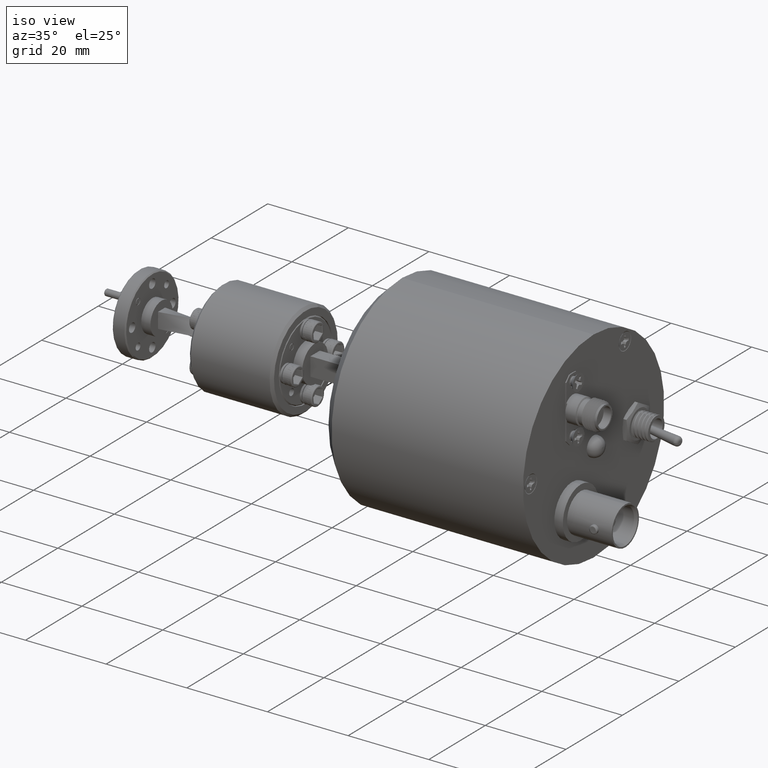
[diagram: clean part render]
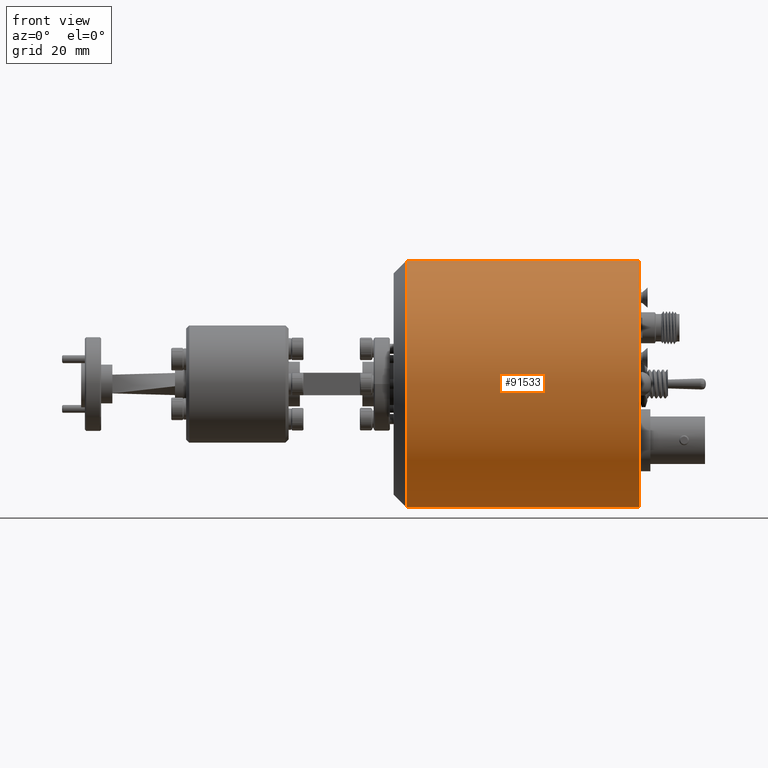
[diagram: tour spotlight — one face highlighted and labeled with its STEP entity id]
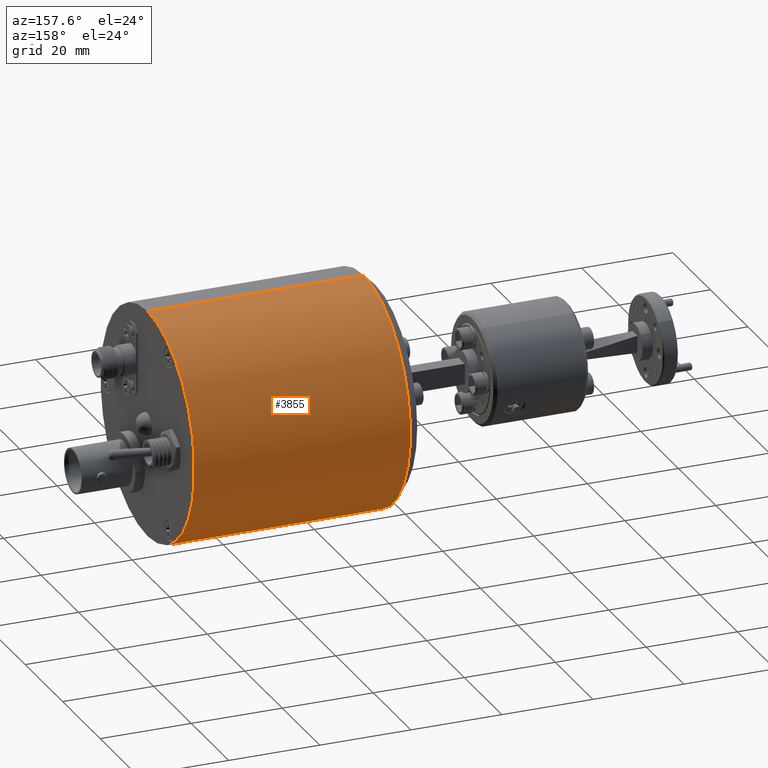
[diagram: tour spotlight — one face highlighted and labeled with its STEP entity id]
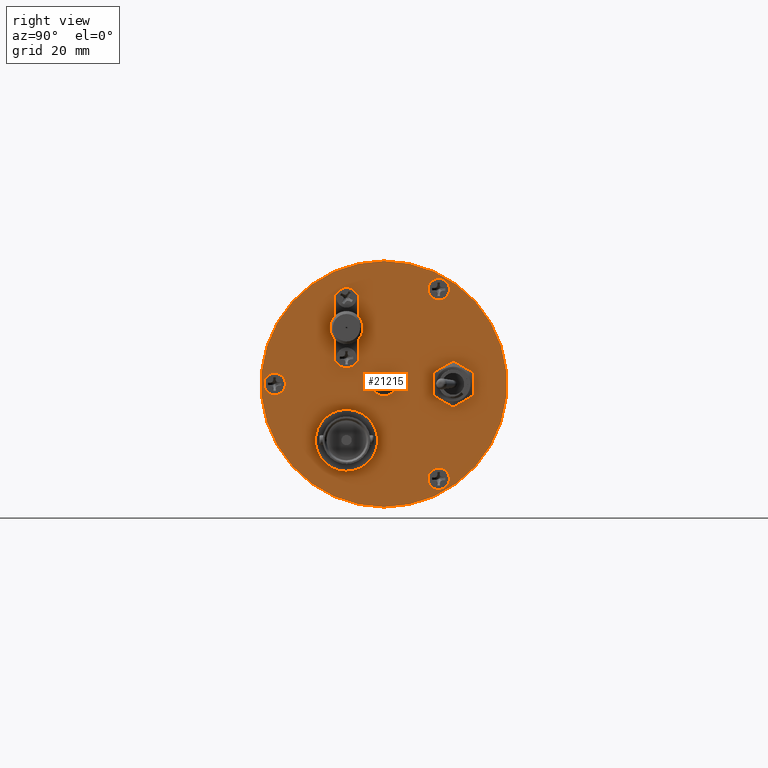
[diagram: tour spotlight — one face highlighted and labeled with its STEP entity id]
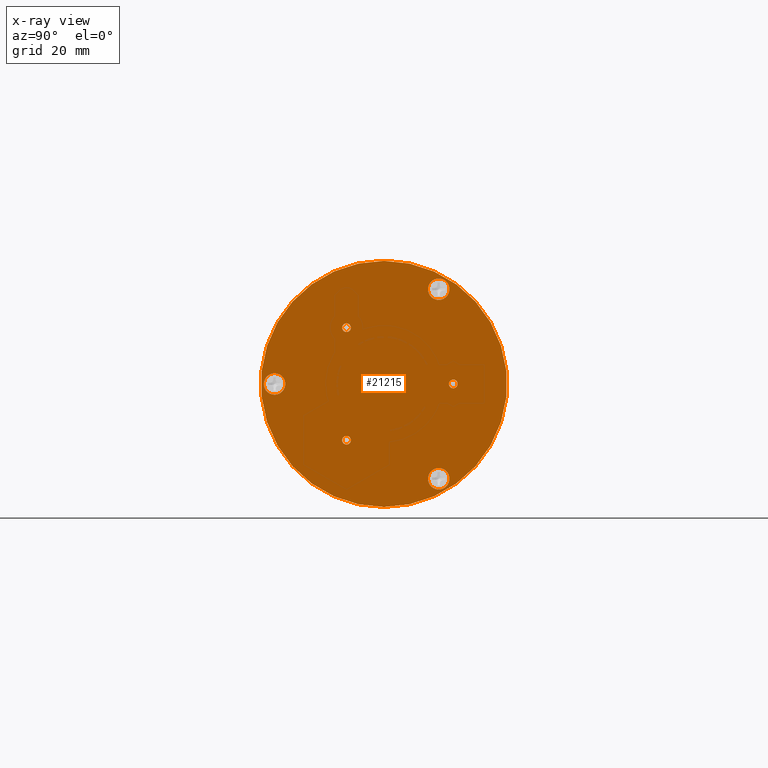
[diagram: x-ray of the same camera — body ghosted, this tour face saturated]
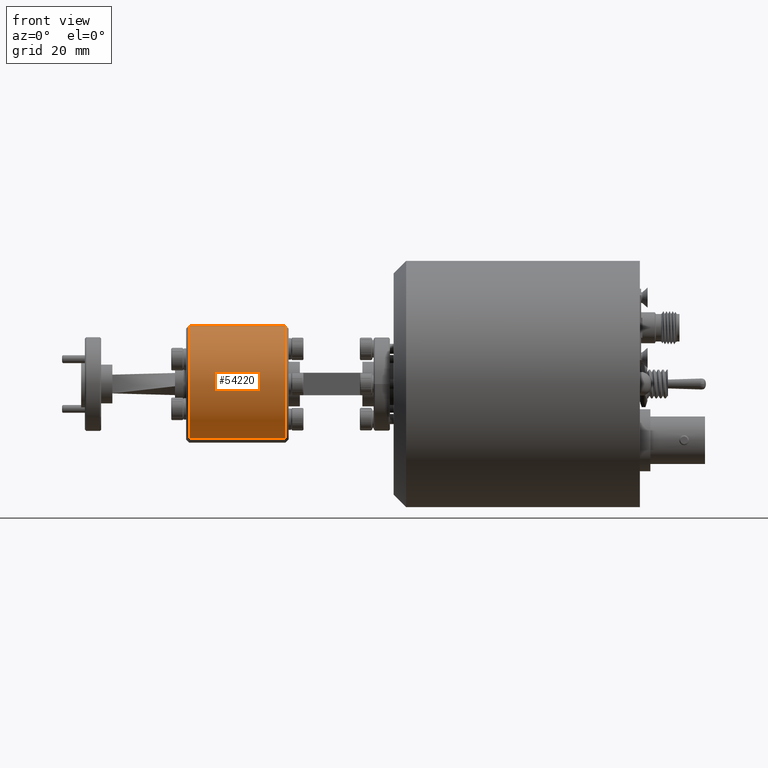
[diagram: tour spotlight — one face highlighted and labeled with its STEP entity id]
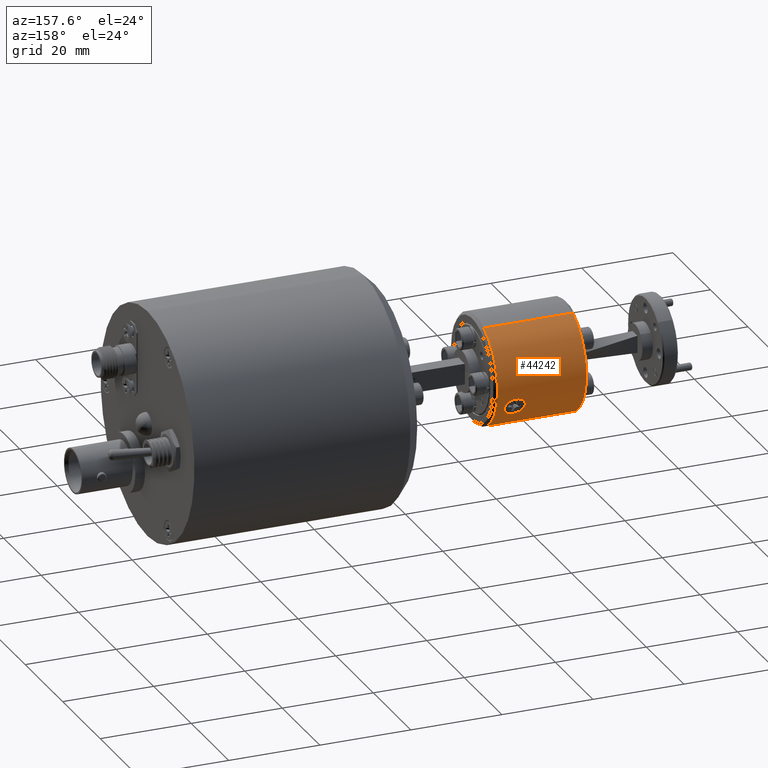
[diagram: tour spotlight — one face highlighted and labeled with its STEP entity id]
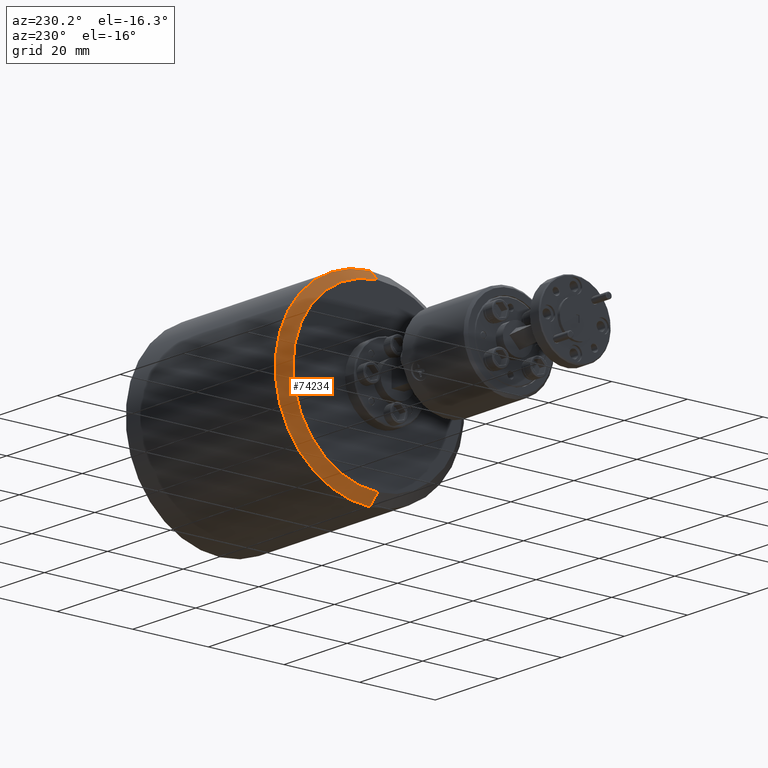
[diagram: tour spotlight — one face highlighted and labeled with its STEP entity id]
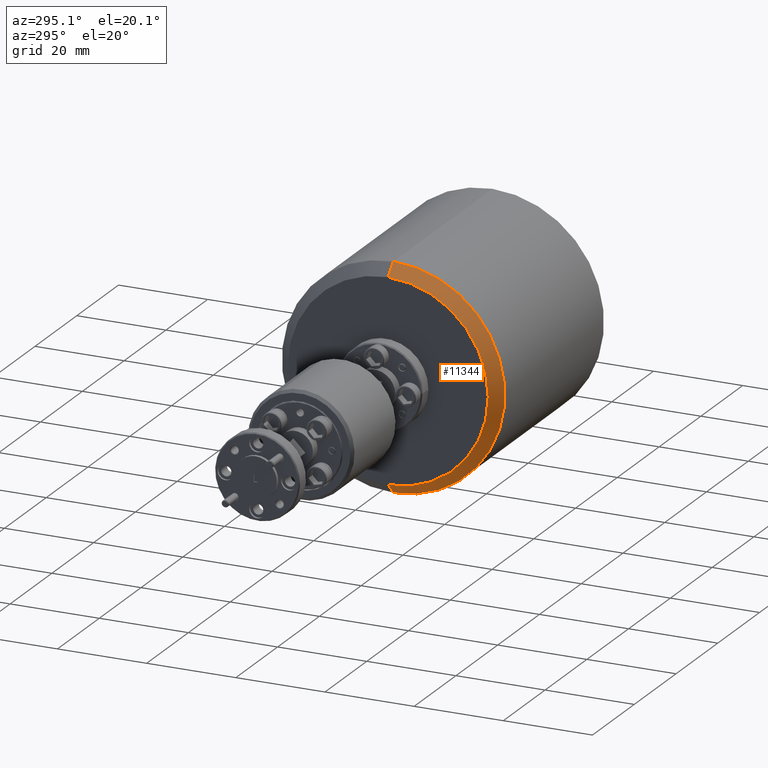
[diagram: tour spotlight — one face highlighted and labeled with its STEP entity id]
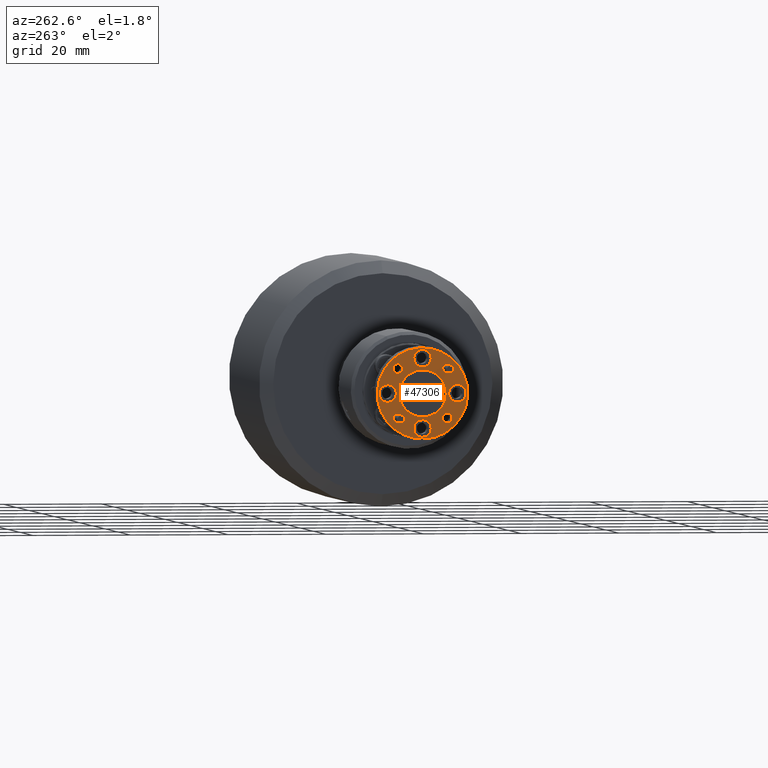
[diagram: tour spotlight — one face highlighted and labeled with its STEP entity id]
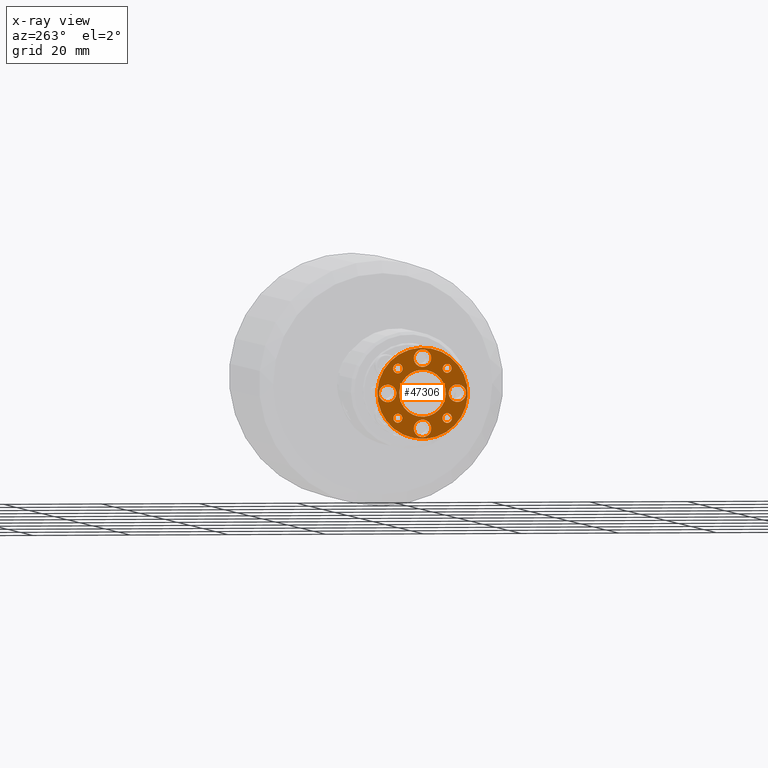
[diagram: x-ray of the same camera — body ghosted, this tour face saturated]
A machine part: a face-by-face anatomy tour. The part has 2917 B-rep faces; the first image is the clean iso view, then the 8 largest visible faces are spotlighted one at a time (largest first), each with its STEP entity span.

Face 1 — front view, entity #91533. In plain terms, the highlighted cylindrical surface (partial cylindrical patch) has radius 24.9999 mm, axis along (1, -0, -0).
Definition (entity closure, byte-faithful):
#9290 = CARTESIAN_POINT ( 'NONE',  ( 54.49080239963394200, 34.78858904316376800, 36.62889942233091000 ) ) ;
#11601 = VERTEX_POINT ( 'NONE', #27655 ) ;
#14045 = EDGE_CURVE ( 'NONE', #80346, #57866, #42507, .T. ) ;
#17786 = DIRECTION ( 'NONE',  ( 0.0000000000000000000, 0.0000000000000000000, -1.000000000000000000 ) ) ;
#20389 = ORIENTED_EDGE ( 'NONE', *, *, #14045, .F. ) ;
#27655 = CARTESIAN_POINT ( 'NONE',  ( 54.49080239963394200, 34.78858904316376800, 11.62894942233091200 ) ) ;
#30233 = AXIS2_PLACEMENT_3D ( 'NONE', #86553, #71037, #38023 ) ;
#31996 = EDGE_CURVE ( 'NONE', #80346, #93833, #35679, .T. ) ;
#35433 = CARTESIAN_POINT ( 'NONE',  ( 54.49080239963394200, 34.78858904316376800, 61.62884942233091600 ) ) ;
#35679 = CIRCLE ( 'NONE', #58995, 24.99994999999999100 ) ;
#36459 = EDGE_LOOP ( 'NONE', ( #20389, #92403, #38585, #53040 ) ) ;
#38023 = DIRECTION ( 'NONE',  ( 0.0000000000000000000, 0.0000000000000000000, -1.000000000000000000 ) ) ;
#38585 = ORIENTED_EDGE ( 'NONE', *, *, #68534, .T. ) ;
#41610 = CARTESIAN_POINT ( 'NONE',  ( 54.49080239963394200, 34.78858904316376800, 11.62894942233091600 ) ) ;
#42507 = LINE ( 'NONE', #91731, #65468 ) ;
#53040 = ORIENTED_EDGE ( 'NONE', *, *, #76133, .F. ) ;
#57866 = VERTEX_POINT ( 'NONE', #35433 ) ;
#58010 = CARTESIAN_POINT ( 'NONE',  ( 7.030802399633946800, 34.78858904316376800, 11.62894942233091900 ) ) ;
#58492 = DIRECTION ( 'NONE',  ( 1.000000000000000000, -0.0000000000000000000, -0.0000000000000000000 ) ) ;
#58995 = AXIS2_PLACEMENT_3D ( 'NONE', #60132, #94772, #94426 ) ;
#59242 = VECTOR ( 'NONE', #98996, 1000.000000000000000 ) ;
#60132 = CARTESIAN_POINT ( 'NONE',  ( 7.030802399633946800, 34.78858904316376800, 36.62889942233091000 ) ) ;
#65468 = VECTOR ( 'NONE', #58492, 1000.000000000000000 ) ;
#68534 = EDGE_CURVE ( 'NONE', #93833, #11601, #80809, .T. ) ;
#71037 = DIRECTION ( 'NONE',  ( 1.000000000000000000, -0.0000000000000000000, -0.0000000000000000000 ) ) ;
#76133 = EDGE_CURVE ( 'NONE', #57866, #11601, #99885, .T. ) ;
#80346 = VERTEX_POINT ( 'NONE', #86927 ) ;
#80809 = LINE ( 'NONE', #41610, #59242 ) ;
#82329 = DIRECTION ( 'NONE',  ( 1.000000000000000000, -0.0000000000000000000, -0.0000000000000000000 ) ) ;
#86553 = CARTESIAN_POINT ( 'NONE',  ( 54.49080239963394200, 34.78858904316376800, 36.62889942233091000 ) ) ;
#86927 = CARTESIAN_POINT ( 'NONE',  ( 7.030802399633946800, 34.78858904316376800, 61.62884942233090900 ) ) ;
#91533 = ADVANCED_FACE ( 'NONE', ( #99791 ), #92159, .T. ) ;
#91731 = CARTESIAN_POINT ( 'NONE',  ( 54.49080239963394200, 34.78858904316376800, 61.62884942233090900 ) ) ;
#92159 = CYLINDRICAL_SURFACE ( 'NONE', #95718, 24.99994999999999500 ) ;
#92403 = ORIENTED_EDGE ( 'NONE', *, *, #31996, .T. ) ;
#93833 = VERTEX_POINT ( 'NONE', #58010 ) ;
#94426 = DIRECTION ( 'NONE',  ( 0.0000000000000000000, 0.0000000000000000000, -1.000000000000000000 ) ) ;
#94772 = DIRECTION ( 'NONE',  ( 1.000000000000000000, -0.0000000000000000000, -0.0000000000000000000 ) ) ;
#95718 = AXIS2_PLACEMENT_3D ( 'NONE', #9290, #82329, #17786 ) ;
#98996 = DIRECTION ( 'NONE',  ( 1.000000000000000000, -0.0000000000000000000, -0.0000000000000000000 ) ) ;
#99791 = FACE_OUTER_BOUND ( 'NONE', #36459, .T. ) ;
#99885 = CIRCLE ( 'NONE', #30233, 24.99994999999999800 ) ;

Face 2 — auxiliary view, entity #3855. In plain terms, the highlighted cylindrical surface (partial cylindrical patch) has radius 24.9999 mm, axis along (1, -0, -0).
Definition (entity closure, byte-faithful):
#3752 = AXIS2_PLACEMENT_3D ( 'NONE', #65068, #56495, #89100 ) ;
#3855 = ADVANCED_FACE ( 'NONE', ( #60270 ), #4372, .T. ) ;
#4372 = CYLINDRICAL_SURFACE ( 'NONE', #94245, 24.99994999999999500 ) ;
#7014 = DIRECTION ( 'NONE',  ( 1.000000000000000000, -0.0000000000000000000, -0.0000000000000000000 ) ) ;
#11601 = VERTEX_POINT ( 'NONE', #27655 ) ;
#14045 = EDGE_CURVE ( 'NONE', #80346, #57866, #42507, .T. ) ;
#23843 = EDGE_LOOP ( 'NONE', ( #59663, #28170, #43734, #100858 ) ) ;
#27655 = CARTESIAN_POINT ( 'NONE',  ( 54.49080239963394200, 34.78858904316376800, 11.62894942233091200 ) ) ;
#28170 = ORIENTED_EDGE ( 'NONE', *, *, #14045, .T. ) ;
#29812 = CARTESIAN_POINT ( 'NONE',  ( 7.030802399633946800, 34.78858904316376800, 36.62889942233091000 ) ) ;
#35433 = CARTESIAN_POINT ( 'NONE',  ( 54.49080239963394200, 34.78858904316376800, 61.62884942233091600 ) ) ;
#41610 = CARTESIAN_POINT ( 'NONE',  ( 54.49080239963394200, 34.78858904316376800, 11.62894942233091600 ) ) ;
#42507 = LINE ( 'NONE', #91731, #65468 ) ;
#43734 = ORIENTED_EDGE ( 'NONE', *, *, #68430, .F. ) ;
#56495 = DIRECTION ( 'NONE',  ( 1.000000000000000000, -0.0000000000000000000, -0.0000000000000000000 ) ) ;
#57866 = VERTEX_POINT ( 'NONE', #35433 ) ;
#58010 = CARTESIAN_POINT ( 'NONE',  ( 7.030802399633946800, 34.78858904316376800, 11.62894942233091900 ) ) ;
#58492 = DIRECTION ( 'NONE',  ( 1.000000000000000000, -0.0000000000000000000, -0.0000000000000000000 ) ) ;
#59242 = VECTOR ( 'NONE', #98996, 1000.000000000000000 ) ;
#59663 = ORIENTED_EDGE ( 'NONE', *, *, #74023, .T. ) ;
#60270 = FACE_OUTER_BOUND ( 'NONE', #23843, .T. ) ;
#61790 = CIRCLE ( 'NONE', #3752, 24.99994999999999800 ) ;
#65068 = CARTESIAN_POINT ( 'NONE',  ( 54.49080239963394200, 34.78858904316376800, 36.62889942233091000 ) ) ;
#65468 = VECTOR ( 'NONE', #58492, 1000.000000000000000 ) ;
#68430 = EDGE_CURVE ( 'NONE', #11601, #57866, #61790, .T. ) ;
#68534 = EDGE_CURVE ( 'NONE', #93833, #11601, #80809, .T. ) ;
#74023 = EDGE_CURVE ( 'NONE', #93833, #80346, #89604, .T. ) ;
#80346 = VERTEX_POINT ( 'NONE', #86927 ) ;
#80809 = LINE ( 'NONE', #41610, #59242 ) ;
#86511 = DIRECTION ( 'NONE',  ( 1.000000000000000000, -0.0000000000000000000, -0.0000000000000000000 ) ) ;
#86927 = CARTESIAN_POINT ( 'NONE',  ( 7.030802399633946800, 34.78858904316376800, 61.62884942233090900 ) ) ;
#89100 = DIRECTION ( 'NONE',  ( 0.0000000000000000000, 0.0000000000000000000, -1.000000000000000000 ) ) ;
#89604 = CIRCLE ( 'NONE', #99307, 24.99994999999999100 ) ;
#91731 = CARTESIAN_POINT ( 'NONE',  ( 54.49080239963394200, 34.78858904316376800, 61.62884942233090900 ) ) ;
#93833 = VERTEX_POINT ( 'NONE', #58010 ) ;
#94245 = AXIS2_PLACEMENT_3D ( 'NONE', #96307, #7014, #104830 ) ;
#96307 = CARTESIAN_POINT ( 'NONE',  ( 54.49080239963394200, 34.78858904316376800, 36.62889942233091000 ) ) ;
#98996 = DIRECTION ( 'NONE',  ( 1.000000000000000000, -0.0000000000000000000, -0.0000000000000000000 ) ) ;
#99307 = AXIS2_PLACEMENT_3D ( 'NONE', #29812, #86511, #102832 ) ;
#100858 = ORIENTED_EDGE ( 'NONE', *, *, #68534, .F. ) ;
#102832 = DIRECTION ( 'NONE',  ( 0.0000000000000000000, 0.0000000000000000000, -1.000000000000000000 ) ) ;
#104830 = DIRECTION ( 'NONE',  ( 0.0000000000000000000, 0.0000000000000000000, -1.000000000000000000 ) ) ;

Face 3 — right view, entity #21215. An x-ray twin of the same camera follows (body ghosted, this face saturated) — the face is partly hidden behind the body. In plain terms, the highlighted planar face has unit normal (1, 0, -0).
Definition (entity closure, byte-faithful):
#1456 = AXIS2_PLACEMENT_3D ( 'NONE', #78266, #94150, #45586 ) ;
#1670 = CARTESIAN_POINT ( 'NONE',  ( 54.49080239963394200, 27.16858904316376700, 47.17624942233091200 ) ) ;
#2772 = EDGE_CURVE ( 'NONE', #11794, #74629, #86953, .T. ) ;
#3752 = AXIS2_PLACEMENT_3D ( 'NONE', #65068, #56495, #89100 ) ;
#4935 = CARTESIAN_POINT ( 'NONE',  ( 54.49080239963394200, 27.16858904316376700, 48.05889942233091000 ) ) ;
#5783 = CARTESIAN_POINT ( 'NONE',  ( 54.49080239963394200, 45.90108904316376500, 17.38148482322176800 ) ) ;
#6106 = CARTESIAN_POINT ( 'NONE',  ( 54.49080239963394200, 34.78858904316376800, 35.74624942233091200 ) ) ;
#8799 = DIRECTION ( 'NONE',  ( 0.0000000000000000000, 0.0000000000000000000, -1.000000000000000000 ) ) ;
#9129 = CIRCLE ( 'NONE', #33356, 2.184400000000002800 ) ;
#9655 = DIRECTION ( 'NONE',  ( 0.0000000000000000000, 0.0000000000000000000, -1.000000000000000000 ) ) ;
#9824 = CIRCLE ( 'NONE', #79320, 0.8826499999999987100 ) ;
#10173 = ORIENTED_EDGE ( 'NONE', *, *, #90249, .F. ) ;
#11131 = ORIENTED_EDGE ( 'NONE', *, *, #43700, .F. ) ;
#11529 = CARTESIAN_POINT ( 'NONE',  ( 54.49080239963394200, 48.85225715312311200, 35.74624942233091200 ) ) ;
#11601 = VERTEX_POINT ( 'NONE', #27655 ) ;
#11794 = VERTEX_POINT ( 'NONE', #23331 ) ;
#11885 = CIRCLE ( 'NONE', #35647, 2.184399999999999700 ) ;
#12122 = EDGE_LOOP ( 'NONE', ( #37499, #11131 ) ) ;
#12561 = ORIENTED_EDGE ( 'NONE', *, *, #52509, .F. ) ;
#12641 = CARTESIAN_POINT ( 'NONE',  ( 54.49080239963394200, 45.90108904316376500, 55.87631402144005200 ) ) ;
#12699 = CIRCLE ( 'NONE', #1456, 0.8826499999999987100 ) ;
#13129 = ORIENTED_EDGE ( 'NONE', *, *, #87399, .F. ) ;
#13923 = DIRECTION ( 'NONE',  ( 0.0000000000000000000, 0.0000000000000000000, -1.000000000000000000 ) ) ;
#13992 = AXIS2_PLACEMENT_3D ( 'NONE', #98942, #26279, #9655 ) ;
#15056 = CIRCLE ( 'NONE', #59652, 2.184400000000002800 ) ;
#15519 = DIRECTION ( 'NONE',  ( 1.000000000000000000, -0.0000000000000000000, -0.0000000000000000000 ) ) ;
#18243 = VERTEX_POINT ( 'NONE', #88661 ) ;
#18876 = VERTEX_POINT ( 'NONE', #59109 ) ;
#19428 = DIRECTION ( 'NONE',  ( 0.0000000000000000000, 0.0000000000000000000, -1.000000000000000000 ) ) ;
#21150 = DIRECTION ( 'NONE',  ( 0.0000000000000000000, 0.0000000000000000000, -1.000000000000000000 ) ) ;
#21215 = ADVANCED_FACE ( 'NONE', ( #37495, #55273, #93296, #71829, #75598, #65438, #93199, #44994 ), #84226, .T. ) ;
#21556 = CIRCLE ( 'NONE', #36102, 0.8826499999999987100 ) ;
#21904 = CARTESIAN_POINT ( 'NONE',  ( 54.49080239963394200, 45.90108904316376500, 17.38148482322176800 ) ) ;
#22059 = DIRECTION ( 'NONE',  ( 0.0000000000000000000, 0.0000000000000000000, -1.000000000000000000 ) ) ;
#23331 = CARTESIAN_POINT ( 'NONE',  ( 54.49080239963394200, 27.16858904316376700, 24.31624942233091200 ) ) ;
#25057 = VERTEX_POINT ( 'NONE', #88734 ) ;
#25202 = EDGE_CURVE ( 'NONE', #90492, #58843, #9129, .T. ) ;
#25241 = DIRECTION ( 'NONE',  ( 0.0000000000000000000, 0.0000000000000000000, -1.000000000000000000 ) ) ;
#26274 = CARTESIAN_POINT ( 'NONE',  ( 54.49080239963394200, 45.90108904316376500, 53.69191402144004900 ) ) ;
#26279 = DIRECTION ( 'NONE',  ( 1.000000000000000000, -0.0000000000000000000, -0.0000000000000000000 ) ) ;
#27449 = EDGE_LOOP ( 'NONE', ( #46907, #36695 ) ) ;
#27655 = CARTESIAN_POINT ( 'NONE',  ( 54.49080239963394200, 34.78858904316376800, 11.62894942233091200 ) ) ;
#27866 = CARTESIAN_POINT ( 'NONE',  ( 54.49080239963394200, 34.78858904316376800, 36.62889942233091000 ) ) ;
#29650 = CIRCLE ( 'NONE', #82447, 2.184400000000002800 ) ;
#29699 = CIRCLE ( 'NONE', #43631, 0.8826499999999987100 ) ;
#30233 = AXIS2_PLACEMENT_3D ( 'NONE', #86553, #71037, #38023 ) ;
#30302 = DIRECTION ( 'NONE',  ( 1.000000000000000000, 0.0000000000000000000, -0.0000000000000000000 ) ) ;
#30368 = ORIENTED_EDGE ( 'NONE', *, *, #43302, .F. ) ;
#30966 = CARTESIAN_POINT ( 'NONE',  ( 54.49080239963394200, 27.16858904316376700, 48.05889942233091000 ) ) ;
#32907 = CARTESIAN_POINT ( 'NONE',  ( 54.49080239963394200, 12.56358904316376800, 36.62889942233091000 ) ) ;
#32967 = VERTEX_POINT ( 'NONE', #52347 ) ;
#32979 = DIRECTION ( 'NONE',  ( 1.000000000000000000, -0.0000000000000000000, -0.0000000000000000000 ) ) ;
#33070 = CARTESIAN_POINT ( 'NONE',  ( 54.49080239963394200, 27.16858904316376700, 25.19889942233091400 ) ) ;
#33356 = AXIS2_PLACEMENT_3D ( 'NONE', #49710, #73585, #74285 ) ;
#34042 = ORIENTED_EDGE ( 'NONE', *, *, #2772, .F. ) ;
#35433 = CARTESIAN_POINT ( 'NONE',  ( 54.49080239963394200, 34.78858904316376800, 61.62884942233091600 ) ) ;
#35647 = AXIS2_PLACEMENT_3D ( 'NONE', #21904, #69488, #61665 ) ;
#36102 = AXIS2_PLACEMENT_3D ( 'NONE', #4935, #63098, #87483 ) ;
#36695 = ORIENTED_EDGE ( 'NONE', *, *, #104682, .F. ) ;
#36715 = CIRCLE ( 'NONE', #77869, 2.184400000000002800 ) ;
#37458 = DIRECTION ( 'NONE',  ( 1.000000000000000000, -0.0000000000000000000, -0.0000000000000000000 ) ) ;
#37495 = FACE_BOUND ( 'NONE', #62059, .T. ) ;
#37499 = ORIENTED_EDGE ( 'NONE', *, *, #78277, .F. ) ;
#37561 = CARTESIAN_POINT ( 'NONE',  ( 54.49080239963394200, 34.78858904316376800, 36.62889942233091000 ) ) ;
#38023 = DIRECTION ( 'NONE',  ( 0.0000000000000000000, 0.0000000000000000000, -1.000000000000000000 ) ) ;
#40931 = VERTEX_POINT ( 'NONE', #1670 ) ;
#40974 = ORIENTED_EDGE ( 'NONE', *, *, #100298, .F. ) ;
#41102 = DIRECTION ( 'NONE',  ( 0.0000000000000000000, 0.0000000000000000000, -1.000000000000000000 ) ) ;
#43302 = EDGE_CURVE ( 'NONE', #44622, #40931, #21556, .T. ) ;
#43631 = AXIS2_PLACEMENT_3D ( 'NONE', #37561, #86458, #78025 ) ;
#43700 = EDGE_CURVE ( 'NONE', #18243, #67381, #12699, .T. ) ;
#44622 = VERTEX_POINT ( 'NONE', #85795 ) ;
#44994 = FACE_OUTER_BOUND ( 'NONE', #69993, .T. ) ;
#45028 = EDGE_CURVE ( 'NONE', #18876, #60215, #11885, .T. ) ;
#45118 = CIRCLE ( 'NONE', #96440, 0.8826500000000021600 ) ;
#45586 = DIRECTION ( 'NONE',  ( 0.0000000000000000000, 0.0000000000000000000, -1.000000000000000000 ) ) ;
#46907 = ORIENTED_EDGE ( 'NONE', *, *, #25202, .F. ) ;
#47261 = CARTESIAN_POINT ( 'NONE',  ( 54.49080239963394200, 45.90108904316376500, 15.19708482322176800 ) ) ;
#49017 = ORIENTED_EDGE ( 'NONE', *, *, #74613, .F. ) ;
#49251 = ORIENTED_EDGE ( 'NONE', *, *, #58420, .F. ) ;
#49710 = CARTESIAN_POINT ( 'NONE',  ( 54.49080239963394200, 45.90108904316376500, 55.87631402144005200 ) ) ;
#50969 = CARTESIAN_POINT ( 'NONE',  ( 54.49080239963394200, 12.56358904316376800, 36.62889942233091000 ) ) ;
#51915 = AXIS2_PLACEMENT_3D ( 'NONE', #94691, #62518, #22059 ) ;
#52347 = CARTESIAN_POINT ( 'NONE',  ( 54.49080239963394200, 34.78858904316376800, 37.51154942233090800 ) ) ;
#52509 = EDGE_CURVE ( 'NONE', #74629, #11794, #45118, .T. ) ;
#53213 = EDGE_LOOP ( 'NONE', ( #34042, #12561 ) ) ;
#55028 = DIRECTION ( 'NONE',  ( 1.000000000000000000, -0.0000000000000000000, -0.0000000000000000000 ) ) ;
#55273 = FACE_BOUND ( 'NONE', #12122, .T. ) ;
#56121 = CIRCLE ( 'NONE', #51915, 0.8826499999999987100 ) ;
#56495 = DIRECTION ( 'NONE',  ( 1.000000000000000000, -0.0000000000000000000, -0.0000000000000000000 ) ) ;
#57697 = CIRCLE ( 'NONE', #71460, 2.184399999999999700 ) ;
#57866 = VERTEX_POINT ( 'NONE', #35433 ) ;
#58420 = EDGE_CURVE ( 'NONE', #25057, #84713, #36715, .T. ) ;
#58843 = VERTEX_POINT ( 'NONE', #91315 ) ;
#59109 = CARTESIAN_POINT ( 'NONE',  ( 54.49080239963394200, 45.90108904316376500, 19.56588482322176900 ) ) ;
#59652 = AXIS2_PLACEMENT_3D ( 'NONE', #12641, #37458, #21150 ) ;
#60215 = VERTEX_POINT ( 'NONE', #47261 ) ;
#61665 = DIRECTION ( 'NONE',  ( 0.0000000000000000000, 0.0000000000000000000, -1.000000000000000000 ) ) ;
#61790 = CIRCLE ( 'NONE', #3752, 24.99994999999999800 ) ;
#62059 = EDGE_LOOP ( 'NONE', ( #13129, #40974 ) ) ;
#62518 = DIRECTION ( 'NONE',  ( 1.000000000000000000, -0.0000000000000000000, -0.0000000000000000000 ) ) ;
#63098 = DIRECTION ( 'NONE',  ( 1.000000000000000000, -0.0000000000000000000, -0.0000000000000000000 ) ) ;
#63175 = ORIENTED_EDGE ( 'NONE', *, *, #99774, .F. ) ;
#64846 = EDGE_LOOP ( 'NONE', ( #63175, #69699 ) ) ;
#65068 = CARTESIAN_POINT ( 'NONE',  ( 54.49080239963394200, 34.78858904316376800, 36.62889942233091000 ) ) ;
#65438 = FACE_BOUND ( 'NONE', #27449, .T. ) ;
#65711 = DIRECTION ( 'NONE',  ( 1.000000000000000000, -0.0000000000000000000, -0.0000000000000000000 ) ) ;
#67381 = VERTEX_POINT ( 'NONE', #11529 ) ;
#68430 = EDGE_CURVE ( 'NONE', #11601, #57866, #61790, .T. ) ;
#68986 = CARTESIAN_POINT ( 'NONE',  ( 54.49080239963394200, 27.16858904316376700, 26.08154942233091600 ) ) ;
#69488 = DIRECTION ( 'NONE',  ( 1.000000000000000000, -0.0000000000000000000, -0.0000000000000000000 ) ) ;
#69699 = ORIENTED_EDGE ( 'NONE', *, *, #45028, .F. ) ;
#69902 = EDGE_LOOP ( 'NONE', ( #10173, #30368 ) ) ;
#69993 = EDGE_LOOP ( 'NONE', ( #92870, #71396 ) ) ;
#71037 = DIRECTION ( 'NONE',  ( 1.000000000000000000, -0.0000000000000000000, -0.0000000000000000000 ) ) ;
#71396 = ORIENTED_EDGE ( 'NONE', *, *, #76133, .T. ) ;
#71460 = AXIS2_PLACEMENT_3D ( 'NONE', #5783, #103954, #13923 ) ;
#71829 = FACE_BOUND ( 'NONE', #53213, .T. ) ;
#73585 = DIRECTION ( 'NONE',  ( 1.000000000000000000, -0.0000000000000000000, -0.0000000000000000000 ) ) ;
#74285 = DIRECTION ( 'NONE',  ( 0.0000000000000000000, 0.0000000000000000000, -1.000000000000000000 ) ) ;
#74613 = EDGE_CURVE ( 'NONE', #84713, #25057, #29650, .T. ) ;
#74629 = VERTEX_POINT ( 'NONE', #68986 ) ;
#75598 = FACE_BOUND ( 'NONE', #64846, .T. ) ;
#76073 = VERTEX_POINT ( 'NONE', #6106 ) ;
#76133 = EDGE_CURVE ( 'NONE', #57866, #11601, #99885, .T. ) ;
#76215 = DIRECTION ( 'NONE',  ( 1.000000000000000000, -0.0000000000000000000, -0.0000000000000000000 ) ) ;
#77869 = AXIS2_PLACEMENT_3D ( 'NONE', #50969, #76215, #19428 ) ;
#78025 = DIRECTION ( 'NONE',  ( 0.0000000000000000000, 0.0000000000000000000, -1.000000000000000000 ) ) ;
#78266 = CARTESIAN_POINT ( 'NONE',  ( 54.49080239963394200, 48.85225715312311200, 36.62889942233091000 ) ) ;
#78277 = EDGE_CURVE ( 'NONE', #67381, #18243, #99592, .T. ) ;
#78546 = DIRECTION ( 'NONE',  ( -0.0000000000000000000, 0.0000000000000000000, -1.000000000000000000 ) ) ;
#79320 = AXIS2_PLACEMENT_3D ( 'NONE', #30966, #55028, #87274 ) ;
#81089 = CARTESIAN_POINT ( 'NONE',  ( 54.49080239963394200, 12.56358904316376800, 38.81329942233091400 ) ) ;
#81502 = EDGE_LOOP ( 'NONE', ( #49251, #49017 ) ) ;
#82447 = AXIS2_PLACEMENT_3D ( 'NONE', #32907, #15519, #8799 ) ;
#84226 = PLANE ( 'NONE',  #99599 ) ;
#84713 = VERTEX_POINT ( 'NONE', #81089 ) ;
#85795 = CARTESIAN_POINT ( 'NONE',  ( 54.49080239963394200, 27.16858904316376700, 48.94154942233090800 ) ) ;
#86458 = DIRECTION ( 'NONE',  ( 1.000000000000000000, -0.0000000000000000000, -0.0000000000000000000 ) ) ;
#86553 = CARTESIAN_POINT ( 'NONE',  ( 54.49080239963394200, 34.78858904316376800, 36.62889942233091000 ) ) ;
#86953 = CIRCLE ( 'NONE', #13992, 0.8826500000000021600 ) ;
#87274 = DIRECTION ( 'NONE',  ( 0.0000000000000000000, 0.0000000000000000000, -1.000000000000000000 ) ) ;
#87399 = EDGE_CURVE ( 'NONE', #76073, #32967, #56121, .T. ) ;
#87483 = DIRECTION ( 'NONE',  ( 0.0000000000000000000, 0.0000000000000000000, -1.000000000000000000 ) ) ;
#88100 = AXIS2_PLACEMENT_3D ( 'NONE', #90705, #32979, #41102 ) ;
#88661 = CARTESIAN_POINT ( 'NONE',  ( 54.49080239963394200, 48.85225715312311200, 37.51154942233090800 ) ) ;
#88734 = CARTESIAN_POINT ( 'NONE',  ( 54.49080239963394200, 12.56358904316376800, 34.44449942233090700 ) ) ;
#89100 = DIRECTION ( 'NONE',  ( 0.0000000000000000000, 0.0000000000000000000, -1.000000000000000000 ) ) ;
#90249 = EDGE_CURVE ( 'NONE', #40931, #44622, #9824, .T. ) ;
#90492 = VERTEX_POINT ( 'NONE', #26274 ) ;
#90705 = CARTESIAN_POINT ( 'NONE',  ( 54.49080239963394200, 48.85225715312311200, 36.62889942233091000 ) ) ;
#91315 = CARTESIAN_POINT ( 'NONE',  ( 54.49080239963394200, 45.90108904316376500, 58.06071402144005600 ) ) ;
#92870 = ORIENTED_EDGE ( 'NONE', *, *, #68430, .T. ) ;
#93199 = FACE_BOUND ( 'NONE', #81502, .T. ) ;
#93296 = FACE_BOUND ( 'NONE', #69902, .T. ) ;
#94150 = DIRECTION ( 'NONE',  ( 1.000000000000000000, -0.0000000000000000000, -0.0000000000000000000 ) ) ;
#94691 = CARTESIAN_POINT ( 'NONE',  ( 54.49080239963394200, 34.78858904316376800, 36.62889942233091000 ) ) ;
#96440 = AXIS2_PLACEMENT_3D ( 'NONE', #33070, #65711, #25241 ) ;
#98942 = CARTESIAN_POINT ( 'NONE',  ( 54.49080239963394200, 27.16858904316376700, 25.19889942233091400 ) ) ;
#99592 = CIRCLE ( 'NONE', #88100, 0.8826499999999987100 ) ;
#99599 = AXIS2_PLACEMENT_3D ( 'NONE', #27866, #30302, #78546 ) ;
#99774 = EDGE_CURVE ( 'NONE', #60215, #18876, #57697, .T. ) ;
#99885 = CIRCLE ( 'NONE', #30233, 24.99994999999999800 ) ;
#100298 = EDGE_CURVE ( 'NONE', #32967, #76073, #29699, .T. ) ;
#103954 = DIRECTION ( 'NONE',  ( 1.000000000000000000, -0.0000000000000000000, -0.0000000000000000000 ) ) ;
#104682 = EDGE_CURVE ( 'NONE', #58843, #90492, #15056, .T. ) ;

Face 4 — front view, entity #54220. In plain terms, the highlighted cylindrical surface (partial cylindrical patch) has radius 11.938 mm, axis along (-1, 0, -0).
Definition (entity closure, byte-faithful):
#894 = LINE ( 'NONE', #41836, #84576 ) ;
#1614 = CARTESIAN_POINT ( 'NONE',  ( -17.48019760036605400, 39.45313725506862600, 47.61153636284627300 ) ) ;
#1910 = EDGE_CURVE ( 'NONE', #101007, #59141, #49041, .T. ) ;
#8864 = CARTESIAN_POINT ( 'NONE',  ( -17.48019760036605400, 34.78858904316366800, 36.62254942233104100 ) ) ;
#9565 = DIRECTION ( 'NONE',  ( -1.000000000000000000, 2.551137404068023700E-017, -9.134714803291777100E-018 ) ) ;
#9963 = DIRECTION ( 'NONE',  ( -1.000000000000000000, 2.551137404068023700E-017, -9.134714803291777100E-018 ) ) ;
#12399 = DIRECTION ( 'NONE',  ( 0.0000000000000000000, -0.3907311284892744900, -0.9205048534524400400 ) ) ;
#12770 = CARTESIAN_POINT ( 'NONE',  ( -37.03819760036605400, 34.78858904316371100, 36.62254942233103300 ) ) ;
#20923 = DIRECTION ( 'NONE',  ( 1.000000000000000000, -2.551137404068023700E-017, 9.134714803291777100E-018 ) ) ;
#22506 = CARTESIAN_POINT ( 'NONE',  ( -17.48019760036605400, 30.12404083125871100, 25.63356248181581200 ) ) ;
#24585 = VECTOR ( 'NONE', #56469, 1000.000000000000000 ) ;
#27991 = AXIS2_PLACEMENT_3D ( 'NONE', #91866, #83081, #100008 ) ;
#29190 = EDGE_CURVE ( 'NONE', #37812, #59141, #894, .T. ) ;
#30943 = CYLINDRICAL_SURFACE ( 'NONE', #27991, 11.93800000000001300 ) ;
#34152 = ORIENTED_EDGE ( 'NONE', *, *, #55193, .T. ) ;
#37812 = VERTEX_POINT ( 'NONE', #22506 ) ;
#39531 = ORIENTED_EDGE ( 'NONE', *, *, #1910, .T. ) ;
#41089 = DIRECTION ( 'NONE',  ( 0.0000000000000000000, -0.3907311284892744900, -0.9205048534524400400 ) ) ;
#41836 = CARTESIAN_POINT ( 'NONE',  ( -16.84519760036605600, 30.12404083125871100, 25.63356248181580100 ) ) ;
#45689 = CIRCLE ( 'NONE', #84228, 11.93800000000001300 ) ;
#46100 = LINE ( 'NONE', #80617, #24585 ) ;
#49041 = CIRCLE ( 'NONE', #76464, 11.93800000000001300 ) ;
#54220 = ADVANCED_FACE ( 'NONE', ( #83037 ), #30943, .T. ) ;
#54458 = ORIENTED_EDGE ( 'NONE', *, *, #29190, .F. ) ;
#55193 = EDGE_CURVE ( 'NONE', #95827, #101007, #46100, .T. ) ;
#56469 = DIRECTION ( 'NONE',  ( -1.000000000000000000, 2.551137404068023700E-017, -9.134714803291777100E-018 ) ) ;
#59141 = VERTEX_POINT ( 'NONE', #70080 ) ;
#62329 = EDGE_CURVE ( 'NONE', #37812, #95827, #45689, .T. ) ;
#70080 = CARTESIAN_POINT ( 'NONE',  ( -37.03819760036605400, 30.12404083125871800, 25.63356248181582200 ) ) ;
#74192 = CARTESIAN_POINT ( 'NONE',  ( -37.03819760036605400, 39.45313725506863300, 47.61153636284628000 ) ) ;
#76464 = AXIS2_PLACEMENT_3D ( 'NONE', #12770, #20923, #12399 ) ;
#78829 = EDGE_LOOP ( 'NONE', ( #54458, #80220, #34152, #39531 ) ) ;
#80220 = ORIENTED_EDGE ( 'NONE', *, *, #62329, .T. ) ;
#80617 = CARTESIAN_POINT ( 'NONE',  ( -16.84519760036605600, 39.45313725506863300, 47.61153636284628000 ) ) ;
#83037 = FACE_OUTER_BOUND ( 'NONE', #78829, .T. ) ;
#83081 = DIRECTION ( 'NONE',  ( -1.000000000000000000, 2.551137404068023700E-017, -9.134714803291777100E-018 ) ) ;
#84228 = AXIS2_PLACEMENT_3D ( 'NONE', #8864, #9565, #41089 ) ;
#84576 = VECTOR ( 'NONE', #9963, 1000.000000000000000 ) ;
#91866 = CARTESIAN_POINT ( 'NONE',  ( -16.84519760036605600, 34.78858904316366800, 36.62254942233104100 ) ) ;
#95827 = VERTEX_POINT ( 'NONE', #1614 ) ;
#100008 = DIRECTION ( 'NONE',  ( 0.0000000000000000000, 0.3907311284892744900, 0.9205048534524400400 ) ) ;
#101007 = VERTEX_POINT ( 'NONE', #74192 ) ;

Face 5 — auxiliary view, entity #44242. In plain terms, the highlighted cylindrical surface (partial cylindrical patch) has radius 11.938 mm, axis along (-1, 0, -0).
Definition (entity closure, byte-faithful):
#894 = LINE ( 'NONE', #41836, #84576 ) ;
#1001 = CARTESIAN_POINT ( 'NONE',  ( -21.96100203641883700, 46.42859307413401400, 33.97173467323584400 ) ) ;
#1614 = CARTESIAN_POINT ( 'NONE',  ( -17.48019760036605400, 39.45313725506862600, 47.61153636284627300 ) ) ;
#3282 = CARTESIAN_POINT ( 'NONE',  ( -37.03819760036605400, 34.78858904316371100, 36.62254942233103300 ) ) ;
#6991 = CARTESIAN_POINT ( 'NONE',  ( -23.89105590591202200, 45.99405934400577000, 32.49673873470677400 ) ) ;
#7196 = CARTESIAN_POINT ( 'NONE',  ( -19.87401559075754800, 45.18722174869596800, 30.75559375974359700 ) ) ;
#7891 = CARTESIAN_POINT ( 'NONE',  ( -20.29995196450359200, 46.33591390715082500, 33.58734485605832300 ) ) ;
#9859 = CARTESIAN_POINT ( 'NONE',  ( -22.78545465632210200, 44.91898310135304200, 30.30617883780236700 ) ) ;
#9963 = DIRECTION ( 'NONE',  ( -1.000000000000000000, 2.551137404068023700E-017, -9.134714803291777100E-018 ) ) ;
#10536 = CARTESIAN_POINT ( 'NONE',  ( -21.67119760036605300, 44.77405481754307500, 30.07989573527886400 ) ) ;
#11468 = DIRECTION ( 'NONE',  ( 1.000000000000000000, -2.551137404068023700E-017, 9.134714803291777100E-018 ) ) ;
#14986 = CARTESIAN_POINT ( 'NONE',  ( -20.19421884849803200, 45.04164010981727300, 30.50699470117723800 ) ) ;
#15130 = CARTESIAN_POINT ( 'NONE',  ( -23.95745469107404800, 45.72224475034099100, 31.82754097875196200 ) ) ;
#15335 = CARTESIAN_POINT ( 'NONE',  ( -19.69519442834662500, 45.30285158379521700, 30.96270589666975000 ) ) ;
#16030 = CARTESIAN_POINT ( 'NONE',  ( -19.87932846707788700, 46.22728363660379400, 33.20413469986927200 ) ) ;
#16384 = CARTESIAN_POINT ( 'NONE',  ( -21.52719683272984600, 46.43146762319722100, 33.98451561462574900 ) ) ;
#17281 = CARTESIAN_POINT ( 'NONE',  ( -22.78525510608322700, 46.36939186395042600, 33.72316744387011100 ) ) ;
#18111 = CIRCLE ( 'NONE', #75786, 11.93800000000001300 ) ;
#19448 = VERTEX_POINT ( 'NONE', #26018 ) ;
#21765 = B_SPLINE_CURVE_WITH_KNOTS ( 'NONE', 3,
 ( #95435, #96125, #63259, #47563, #39809, #55037, #22444, #63608, #14986, #7196, #15335, #72121, #23497, #96484, #47906, #22102, #78839, #86936, #38413, #25248, #64311, #16030, #98252, #7891, #80595, #49315, #72828, #40145, #16384, #97537 ),
 .UNSPECIFIED., .F., .F.,
 ( 4, 2, 2, 2, 2, 2, 2, 2, 2, 2, 2, 2, 2, 2, 4 ),
 ( 0.001690938879347311000, 0.002123738363626407200, 0.002556537847905503000, 0.002989337332184599200, 0.003422136816463695400, 0.004287735785021881700, 0.004720535269300957100, 0.005153334753580033300, 0.005586134237859108700, 0.006018933722138184900, 0.006451733206417261200, 0.006884532690696337400, 0.007750131659254477800, 0.008182931143533545400, 0.008615730627812611200 ),
 .UNSPECIFIED. ) ;
#22102 = CARTESIAN_POINT ( 'NONE',  ( -19.38489058955088500, 45.83239616215352200, 32.08702046939172400 ) ) ;
#22444 = CARTESIAN_POINT ( 'NONE',  ( -20.55963720312102100, 44.91820703898581300, 30.30493056485810000 ) ) ;
#22506 = CARTESIAN_POINT ( 'NONE',  ( -17.48019760036605400, 30.12404083125871100, 25.63356248181581200 ) ) ;
#22547 = EDGE_CURVE ( 'NONE', #95827, #37812, #48646, .T. ) ;
#22586 = CARTESIAN_POINT ( 'NONE',  ( -23.14713042048786200, 46.31035243470830700, 33.49619165799229800 ) ) ;
#23497 = CARTESIAN_POINT ( 'NONE',  ( -19.46537412050274800, 45.54128805526736600, 31.43455291379093800 ) ) ;
#24585 = VECTOR ( 'NONE', #56469, 1000.000000000000000 ) ;
#25248 = CARTESIAN_POINT ( 'NONE',  ( -19.63260829056195100, 46.12053861234462500, 32.86486426192608000 ) ) ;
#25328 = CYLINDRICAL_SURFACE ( 'NONE', #67539, 11.93800000000001300 ) ;
#26018 = CARTESIAN_POINT ( 'NONE',  ( -21.67119760036605300, 46.43146762319721400, 33.98451561462574900 ) ) ;
#26133 = CARTESIAN_POINT ( 'NONE',  ( -23.03210783406373000, 44.99721345917976800, 30.43341307967243000 ) ) ;
#26363 = DIRECTION ( 'NONE',  ( 0.0000000000000000000, -0.3907311284892744900, -0.9205048534524400400 ) ) ;
#27083 = ORIENTED_EDGE ( 'NONE', *, *, #29190, .T. ) ;
#29190 = EDGE_CURVE ( 'NONE', #37812, #59141, #894, .T. ) ;
#31769 = AXIS2_PLACEMENT_3D ( 'NONE', #71744, #96795, #60434 ) ;
#32679 = DIRECTION ( 'NONE',  ( -1.000000000000000000, 2.551137404068023700E-017, -9.134714803291777100E-018 ) ) ;
#34672 = CARTESIAN_POINT ( 'NONE',  ( -23.47300656713501600, 45.18951994967132200, 30.75957188823885600 ) ) ;
#37812 = VERTEX_POINT ( 'NONE', #22506 ) ;
#38413 = CARTESIAN_POINT ( 'NONE',  ( -19.51026393412981400, 46.03465233836423900, 32.61513889138589000 ) ) ;
#39809 = CARTESIAN_POINT ( 'NONE',  ( -20.95819125307303200, 44.83038750971798000, 30.16649046653482100 ) ) ;
#40145 = CARTESIAN_POINT ( 'NONE',  ( -21.38381713052982700, 46.42866642456107200, 33.97205669640071300 ) ) ;
#41836 = CARTESIAN_POINT ( 'NONE',  ( -16.84519760036605600, 30.12404083125871100, 25.63356248181580100 ) ) ;
#41862 = CARTESIAN_POINT ( 'NONE',  ( -16.84519760036605600, 34.78858904316366800, 36.62254942233104100 ) ) ;
#43110 = CARTESIAN_POINT ( 'NONE',  ( -23.94173665091844300, 45.66394826182497700, 31.69687163856783800 ) ) ;
#44242 = ADVANCED_FACE ( 'NONE', ( #59631, #44320 ), #25328, .T. ) ;
#44320 = FACE_OUTER_BOUND ( 'NONE', #46329, .T. ) ;
#46100 = LINE ( 'NONE', #80617, #24585 ) ;
#46329 = EDGE_LOOP ( 'NONE', ( #74356, #27083, #65990, #71702 ) ) ;
#47356 = CARTESIAN_POINT ( 'NONE',  ( -22.38360144288534700, 46.40835446691938400, 33.88403339038840300 ) ) ;
#47563 = CARTESIAN_POINT ( 'NONE',  ( -21.09933444829125900, 44.80916620004504800, 30.13374824265551800 ) ) ;
#47906 = CARTESIAN_POINT ( 'NONE',  ( -19.38551373384346700, 45.71945018399841800, 31.82119822874080500 ) ) ;
#48646 = CIRCLE ( 'NONE', #31769, 11.93800000000001300 ) ;
#49315 = CARTESIAN_POINT ( 'NONE',  ( -20.95767958462921500, 46.40827577098932700, 33.88369823561213000 ) ) ;
#50648 = EDGE_LOOP ( 'NONE', ( #82012, #79105 ) ) ;
#50899 = CARTESIAN_POINT ( 'NONE',  ( -23.83186982341746300, 45.48325434073677100, 31.31622385430175700 ) ) ;
#55037 = CARTESIAN_POINT ( 'NONE',  ( -20.68909254596820800, 44.88485282371487300, 30.25200224354496800 ) ) ;
#55184 = CARTESIAN_POINT ( 'NONE',  ( -23.36164412744149400, 46.25834046293616800, 33.31045840757829500 ) ) ;
#55193 = EDGE_CURVE ( 'NONE', #95827, #101007, #46100, .T. ) ;
#55528 = CARTESIAN_POINT ( 'NONE',  ( -23.70704734104878500, 46.12206328867095100, 32.86948878470222700 ) ) ;
#56469 = DIRECTION ( 'NONE',  ( -1.000000000000000000, 2.551137404068023700E-017, -9.134714803291777100E-018 ) ) ;
#58422 = CARTESIAN_POINT ( 'NONE',  ( -23.14861581489961800, 45.04174387702895600, 30.50714540668425600 ) ) ;
#58782 = B_SPLINE_CURVE_WITH_KNOTS ( 'NONE', 3,
 ( #95921, #65929, #1001, #103770, #47356, #104117, #17281, #82190, #22586, #55184, #90287, #98435, #55528, #6991, #63754, #15130, #43110, #82531, #50899, #83895, #34672, #58422, #26133, #9859, #91670, #59113, #90976, #75801, #99805, #10536 ),
 .UNSPECIFIED., .F., .F.,
 ( 4, 2, 2, 2, 2, 2, 2, 2, 2, 2, 2, 2, 2, 2, 4 ),
 ( 0.008615730627812611200, 0.009048113881055922700, 0.009480497134299234100, 0.009912880387542543800, 0.01034526364078585500, 0.01077764689402916700, 0.01121003014727247800, 0.01207479665375909400, 0.01250717990700239400, 0.01293956316024569300, 0.01380432966673229800, 0.01423671291997560800, 0.01466909617321891800, 0.01510147942646222800, 0.01553386267970553600 ),
 .UNSPECIFIED. ) ;
#59113 = CARTESIAN_POINT ( 'NONE',  ( -22.38339581961205100, 44.83023241512518100, 30.16624767066364000 ) ) ;
#59141 = VERTEX_POINT ( 'NONE', #70080 ) ;
#59631 = FACE_BOUND ( 'NONE', #50648, .T. ) ;
#60434 = DIRECTION ( 'NONE',  ( 0.0000000000000000000, -0.3907311284892744900, -0.9205048534524400400 ) ) ;
#63259 = CARTESIAN_POINT ( 'NONE',  ( -21.38396910570674700, 44.78107550757085400, 30.09057257263151900 ) ) ;
#63608 = CARTESIAN_POINT ( 'NONE',  ( -20.31139826565527400, 44.99678309450919000, 30.43269942579191300 ) ) ;
#63754 = CARTESIAN_POINT ( 'NONE',  ( -23.95667397880602000, 45.89235369464077500, 32.22862054796910100 ) ) ;
#64311 = CARTESIAN_POINT ( 'NONE',  ( -19.70674265314177700, 46.15871532906832200, 32.98256021090200100 ) ) ;
#65692 = DIRECTION ( 'NONE',  ( 0.0000000000000000000, 0.3907311284892744900, 0.9205048534524400400 ) ) ;
#65929 = CARTESIAN_POINT ( 'NONE',  ( -21.81505987987822700, 46.43146762319723600, 33.98451561462574900 ) ) ;
#65990 = ORIENTED_EDGE ( 'NONE', *, *, #87080, .T. ) ;
#67539 = AXIS2_PLACEMENT_3D ( 'NONE', #41862, #32679, #65692 ) ;
#70080 = CARTESIAN_POINT ( 'NONE',  ( -37.03819760036605400, 30.12404083125871800, 25.63356248181582200 ) ) ;
#71702 = ORIENTED_EDGE ( 'NONE', *, *, #55193, .F. ) ;
#71744 = CARTESIAN_POINT ( 'NONE',  ( -17.48019760036605400, 34.78858904316366800, 36.62254942233104100 ) ) ;
#72121 = CARTESIAN_POINT ( 'NONE',  ( -19.51309084990908000, 45.48031415523195200, 31.31031980520764800 ) ) ;
#72828 = CARTESIAN_POINT ( 'NONE',  ( -21.09833176622026200, 46.41707082732960300, 33.92163762620560900 ) ) ;
#74192 = CARTESIAN_POINT ( 'NONE',  ( -37.03819760036605400, 39.45313725506863300, 47.61153636284628000 ) ) ;
#74356 = ORIENTED_EDGE ( 'NONE', *, *, #22547, .T. ) ;
#75786 = AXIS2_PLACEMENT_3D ( 'NONE', #3282, #11468, #26363 ) ;
#75801 = CARTESIAN_POINT ( 'NONE',  ( -21.96114635107515800, 44.78126877517007600, 30.09086800772382700 ) ) ;
#76956 = CARTESIAN_POINT ( 'NONE',  ( -21.67119760036605300, 44.77405481754307500, 30.07989573527886400 ) ) ;
#78839 = CARTESIAN_POINT ( 'NONE',  ( -19.40095250785957500, 45.88715317586824200, 32.22283232832909800 ) ) ;
#79105 = ORIENTED_EDGE ( 'NONE', *, *, #92658, .T. ) ;
#80595 = CARTESIAN_POINT ( 'NONE',  ( -20.55348758418538700, 46.37267527337274900, 33.73548930617870000 ) ) ;
#80617 = CARTESIAN_POINT ( 'NONE',  ( -16.84519760036605600, 39.45313725506863300, 47.61153636284628000 ) ) ;
#82012 = ORIENTED_EDGE ( 'NONE', *, *, #102348, .T. ) ;
#82190 = CARTESIAN_POINT ( 'NONE',  ( -23.03173768202578500, 46.33225037100341100, 33.57865504520432900 ) ) ;
#82531 = CARTESIAN_POINT ( 'NONE',  ( -23.87923526072950500, 45.54453065840810000, 31.44128898361219600 ) ) ;
#83895 = CARTESIAN_POINT ( 'NONE',  ( -23.65026205227487200, 45.30498367948567300, 30.96660217211020700 ) ) ;
#84576 = VECTOR ( 'NONE', #9963, 1000.000000000000000 ) ;
#86936 = CARTESIAN_POINT ( 'NONE',  ( -19.46351317878972200, 45.98775477202433100, 32.48560329112240900 ) ) ;
#87080 = EDGE_CURVE ( 'NONE', #59141, #101007, #18111, .T. ) ;
#90287 = CARTESIAN_POINT ( 'NONE',  ( -23.46092473165770900, 46.22796837351516100, 33.20645505331221900 ) ) ;
#90976 = CARTESIAN_POINT ( 'NONE',  ( -22.24487739953273600, 44.80942189297604700, 30.13414289033124000 ) ) ;
#91670 = CARTESIAN_POINT ( 'NONE',  ( -22.65363871956435900, 44.88491238795258900, 30.25209505582688200 ) ) ;
#92658 = EDGE_CURVE ( 'NONE', #97762, #19448, #21765, .T. ) ;
#95435 = CARTESIAN_POINT ( 'NONE',  ( -21.67119760036605300, 44.77405481754307500, 30.07989573527886400 ) ) ;
#95827 = VERTEX_POINT ( 'NONE', #1614 ) ;
#95921 = CARTESIAN_POINT ( 'NONE',  ( -21.67119760036605300, 46.43146762319721400, 33.98451561462574900 ) ) ;
#96125 = CARTESIAN_POINT ( 'NONE',  ( -21.52715547674095100, 44.77405481754308200, 30.07989573527887800 ) ) ;
#96484 = CARTESIAN_POINT ( 'NONE',  ( -19.40162090917152000, 45.66117005584881400, 31.69073171076473000 ) ) ;
#96795 = DIRECTION ( 'NONE',  ( -1.000000000000000000, 2.551137404068023700E-017, -9.134714803291777100E-018 ) ) ;
#97537 = CARTESIAN_POINT ( 'NONE',  ( -21.67119760036605300, 46.43146762319721400, 33.98451561462574900 ) ) ;
#97762 = VERTEX_POINT ( 'NONE', #76956 ) ;
#98252 = CARTESIAN_POINT ( 'NONE',  ( -19.97851720065670000, 46.25770808514170100, 33.30826428533220000 ) ) ;
#98435 = CARTESIAN_POINT ( 'NONE',  ( -23.63294210000585600, 46.15995383738329100, 32.98645771302321400 ) ) ;
#99805 = CARTESIAN_POINT ( 'NONE',  ( -21.81510119609431400, 44.77405481754308200, 30.07989573527886800 ) ) ;
#101007 = VERTEX_POINT ( 'NONE', #74192 ) ;
#102348 = EDGE_CURVE ( 'NONE', #19448, #97762, #58782, .T. ) ;
#103770 = CARTESIAN_POINT ( 'NONE',  ( -22.24517875828056300, 46.41700010736260400, 33.92133325233599800 ) ) ;
#104117 = CARTESIAN_POINT ( 'NONE',  ( -22.65310251337363600, 46.38465602149482000, 33.78535905255088100 ) ) ;

Face 6 — auxiliary view, entity #74234. In plain terms, the highlighted conical surface has half-angle 45 deg.
Definition (entity closure, byte-faithful):
#563 = CARTESIAN_POINT ( 'NONE',  ( 7.030802399633946800, 34.78858904316376800, 61.62884942233090900 ) ) ;
#812 = VERTEX_POINT ( 'NONE', #90064 ) ;
#10282 = DIRECTION ( 'NONE',  ( 1.000000000000000000, -0.0000000000000000000, -0.0000000000000000000 ) ) ;
#15414 = ORIENTED_EDGE ( 'NONE', *, *, #24517, .T. ) ;
#21096 = VECTOR ( 'NONE', #97167, 1000.000000000000000 ) ;
#24517 = EDGE_CURVE ( 'NONE', #812, #80346, #70238, .T. ) ;
#24741 = VERTEX_POINT ( 'NONE', #99222 ) ;
#24786 = EDGE_CURVE ( 'NONE', #24741, #812, #37092, .T. ) ;
#26923 = DIRECTION ( 'NONE',  ( 0.0000000000000000000, 0.0000000000000000000, -1.000000000000000000 ) ) ;
#29558 = ORIENTED_EDGE ( 'NONE', *, *, #74023, .F. ) ;
#29812 = CARTESIAN_POINT ( 'NONE',  ( 7.030802399633946800, 34.78858904316376800, 36.62889942233091000 ) ) ;
#37092 = CIRCLE ( 'NONE', #99146, 22.45994999999999200 ) ;
#55301 = CARTESIAN_POINT ( 'NONE',  ( 7.030802399633946800, 34.78858904316376800, 36.62889942233091000 ) ) ;
#56426 = CARTESIAN_POINT ( 'NONE',  ( 7.030802399633946800, 34.78858904316376800, 11.62894942233091900 ) ) ;
#56551 = DIRECTION ( 'NONE',  ( 0.7071067811865484600, 8.659560562354921800E-017, 0.7071067811865465700 ) ) ;
#58010 = CARTESIAN_POINT ( 'NONE',  ( 7.030802399633946800, 34.78858904316376800, 11.62894942233091900 ) ) ;
#60399 = LINE ( 'NONE', #56426, #21096 ) ;
#70238 = LINE ( 'NONE', #563, #98016 ) ;
#71690 = DIRECTION ( 'NONE',  ( 1.000000000000000000, -0.0000000000000000000, -0.0000000000000000000 ) ) ;
#74023 = EDGE_CURVE ( 'NONE', #93833, #80346, #89604, .T. ) ;
#74234 = ADVANCED_FACE ( 'NONE', ( #94682 ), #102320, .T. ) ;
#75022 = AXIS2_PLACEMENT_3D ( 'NONE', #55301, #71690, #86848 ) ;
#76228 = CARTESIAN_POINT ( 'NONE',  ( 4.490802399633938800, 34.78858904316376800, 36.62889942233091000 ) ) ;
#77682 = EDGE_CURVE ( 'NONE', #24741, #93833, #60399, .T. ) ;
#80346 = VERTEX_POINT ( 'NONE', #86927 ) ;
#86511 = DIRECTION ( 'NONE',  ( 1.000000000000000000, -0.0000000000000000000, -0.0000000000000000000 ) ) ;
#86848 = DIRECTION ( 'NONE',  ( 0.0000000000000000000, 0.0000000000000000000, -1.000000000000000000 ) ) ;
#86927 = CARTESIAN_POINT ( 'NONE',  ( 7.030802399633946800, 34.78858904316376800, 61.62884942233090900 ) ) ;
#89601 = ORIENTED_EDGE ( 'NONE', *, *, #77682, .F. ) ;
#89604 = CIRCLE ( 'NONE', #99307, 24.99994999999999100 ) ;
#90064 = CARTESIAN_POINT ( 'NONE',  ( 4.490802399633938800, 34.78858904316376800, 59.08884942233090200 ) ) ;
#93833 = VERTEX_POINT ( 'NONE', #58010 ) ;
#94682 = FACE_OUTER_BOUND ( 'NONE', #99022, .T. ) ;
#97167 = DIRECTION ( 'NONE',  ( 0.7071067811865484600, 0.0000000000000000000, -0.7071067811865465700 ) ) ;
#98016 = VECTOR ( 'NONE', #56551, 1000.000000000000000 ) ;
#98632 = ORIENTED_EDGE ( 'NONE', *, *, #24786, .T. ) ;
#99022 = EDGE_LOOP ( 'NONE', ( #98632, #15414, #29558, #89601 ) ) ;
#99146 = AXIS2_PLACEMENT_3D ( 'NONE', #76228, #10282, #26923 ) ;
#99222 = CARTESIAN_POINT ( 'NONE',  ( 4.490802399633938800, 34.78858904316376800, 14.16894942233092000 ) ) ;
#99307 = AXIS2_PLACEMENT_3D ( 'NONE', #29812, #86511, #102832 ) ;
#102320 = CONICAL_SURFACE ( 'NONE', #75022, 24.99994999999999100, 0.7853981633974469500 ) ;
#102832 = DIRECTION ( 'NONE',  ( 0.0000000000000000000, 0.0000000000000000000, -1.000000000000000000 ) ) ;

Face 7 — auxiliary view, entity #11344. In plain terms, the highlighted conical surface has half-angle 45 deg.
Definition (entity closure, byte-faithful):
#563 = CARTESIAN_POINT ( 'NONE',  ( 7.030802399633946800, 34.78858904316376800, 61.62884942233090900 ) ) ;
#721 = ORIENTED_EDGE ( 'NONE', *, *, #31996, .F. ) ;
#812 = VERTEX_POINT ( 'NONE', #90064 ) ;
#5990 = AXIS2_PLACEMENT_3D ( 'NONE', #48229, #65349, #41513 ) ;
#11344 = ADVANCED_FACE ( 'NONE', ( #12480 ), #45418, .T. ) ;
#12480 = FACE_OUTER_BOUND ( 'NONE', #34395, .T. ) ;
#21096 = VECTOR ( 'NONE', #97167, 1000.000000000000000 ) ;
#24517 = EDGE_CURVE ( 'NONE', #812, #80346, #70238, .T. ) ;
#24741 = VERTEX_POINT ( 'NONE', #99222 ) ;
#31996 = EDGE_CURVE ( 'NONE', #80346, #93833, #35679, .T. ) ;
#34395 = EDGE_LOOP ( 'NONE', ( #61193, #79165, #78533, #721 ) ) ;
#35679 = CIRCLE ( 'NONE', #58995, 24.99994999999999100 ) ;
#41513 = DIRECTION ( 'NONE',  ( 0.0000000000000000000, 0.0000000000000000000, -1.000000000000000000 ) ) ;
#45418 = CONICAL_SURFACE ( 'NONE', #5990, 24.99994999999999100, 0.7853981633974469500 ) ;
#48229 = CARTESIAN_POINT ( 'NONE',  ( 7.030802399633946800, 34.78858904316376800, 36.62889942233091000 ) ) ;
#56426 = CARTESIAN_POINT ( 'NONE',  ( 7.030802399633946800, 34.78858904316376800, 11.62894942233091900 ) ) ;
#56551 = DIRECTION ( 'NONE',  ( 0.7071067811865484600, 8.659560562354921800E-017, 0.7071067811865465700 ) ) ;
#58010 = CARTESIAN_POINT ( 'NONE',  ( 7.030802399633946800, 34.78858904316376800, 11.62894942233091900 ) ) ;
#58995 = AXIS2_PLACEMENT_3D ( 'NONE', #60132, #94772, #94426 ) ;
#60132 = CARTESIAN_POINT ( 'NONE',  ( 7.030802399633946800, 34.78858904316376800, 36.62889942233091000 ) ) ;
#60399 = LINE ( 'NONE', #56426, #21096 ) ;
#61193 = ORIENTED_EDGE ( 'NONE', *, *, #24517, .F. ) ;
#62277 = AXIS2_PLACEMENT_3D ( 'NONE', #72071, #87929, #63905 ) ;
#63905 = DIRECTION ( 'NONE',  ( 0.0000000000000000000, 0.0000000000000000000, -1.000000000000000000 ) ) ;
#65349 = DIRECTION ( 'NONE',  ( 1.000000000000000000, -0.0000000000000000000, -0.0000000000000000000 ) ) ;
#67617 = CIRCLE ( 'NONE', #62277, 22.45994999999999200 ) ;
#70238 = LINE ( 'NONE', #563, #98016 ) ;
#72071 = CARTESIAN_POINT ( 'NONE',  ( 4.490802399633938800, 34.78858904316376800, 36.62889942233091000 ) ) ;
#77682 = EDGE_CURVE ( 'NONE', #24741, #93833, #60399, .T. ) ;
#78533 = ORIENTED_EDGE ( 'NONE', *, *, #77682, .T. ) ;
#79165 = ORIENTED_EDGE ( 'NONE', *, *, #88459, .T. ) ;
#80346 = VERTEX_POINT ( 'NONE', #86927 ) ;
#86927 = CARTESIAN_POINT ( 'NONE',  ( 7.030802399633946800, 34.78858904316376800, 61.62884942233090900 ) ) ;
#87929 = DIRECTION ( 'NONE',  ( 1.000000000000000000, -0.0000000000000000000, -0.0000000000000000000 ) ) ;
#88459 = EDGE_CURVE ( 'NONE', #812, #24741, #67617, .T. ) ;
#90064 = CARTESIAN_POINT ( 'NONE',  ( 4.490802399633938800, 34.78858904316376800, 59.08884942233090200 ) ) ;
#93833 = VERTEX_POINT ( 'NONE', #58010 ) ;
#94426 = DIRECTION ( 'NONE',  ( 0.0000000000000000000, 0.0000000000000000000, -1.000000000000000000 ) ) ;
#94772 = DIRECTION ( 'NONE',  ( 1.000000000000000000, -0.0000000000000000000, -0.0000000000000000000 ) ) ;
#97167 = DIRECTION ( 'NONE',  ( 0.7071067811865484600, 0.0000000000000000000, -0.7071067811865465700 ) ) ;
#98016 = VECTOR ( 'NONE', #56551, 1000.000000000000000 ) ;
#99222 = CARTESIAN_POINT ( 'NONE',  ( 4.490802399633938800, 34.78858904316376800, 14.16894942233092000 ) ) ;

Face 8 — auxiliary view, entity #47306. An x-ray twin of the same camera follows (body ghosted, this face saturated) — the face is partly hidden behind the body. In plain terms, the highlighted planar face has unit normal (1, -0, -0).
Definition (entity closure, byte-faithful):
#1606 = VERTEX_POINT ( 'NONE', #21740 ) ;
#2156 = CARTESIAN_POINT ( 'NONE',  ( -58.22179760036608100, 27.64483904316349300, 36.62254942233126800 ) ) ;
#2160 = DIRECTION ( 'NONE',  ( 1.000000000000000000, -4.672865910726621600E-016, -1.331131158832845800E-015 ) ) ;
#2509 = DIRECTION ( 'NONE',  ( 0.0000000000000000000, -0.7071067811865495700, -0.7071067811865455700 ) ) ;
#3034 = CIRCLE ( 'NONE', #19308, 1.778000000000003100 ) ;
#3947 = FACE_BOUND ( 'NONE', #104372, .T. ) ;
#4025 = DIRECTION ( 'NONE',  ( -1.000000000000000000, 4.672865910726621600E-016, 1.331131158832845800E-015 ) ) ;
#4525 = CARTESIAN_POINT ( 'NONE',  ( -58.22179760036608100, 29.73719497506211000, 41.67394349043262700 ) ) ;
#4530 = CARTESIAN_POINT ( 'NONE',  ( -58.22179760036608100, 34.78858904316347600, 43.76629942233122300 ) ) ;
#4774 = VERTEX_POINT ( 'NONE', #62133 ) ;
#5005 = CIRCLE ( 'NONE', #17320, 0.9778999999999976600 ) ;
#7094 = AXIS2_PLACEMENT_3D ( 'NONE', #28425, #37293, #102488 ) ;
#7198 = VERTEX_POINT ( 'NONE', #94468 ) ;
#7231 = VERTEX_POINT ( 'NONE', #102992 ) ;
#8138 = DIRECTION ( 'NONE',  ( -1.000000000000000000, 4.672865910726621600E-016, 1.331131158832845800E-015 ) ) ;
#8479 = EDGE_CURVE ( 'NONE', #7198, #96628, #103886, .T. ) ;
#9538 = VERTEX_POINT ( 'NONE', #27097 ) ;
#9779 = ORIENTED_EDGE ( 'NONE', *, *, #47230, .F. ) ;
#10146 = ORIENTED_EDGE ( 'NONE', *, *, #75083, .T. ) ;
#12766 = EDGE_LOOP ( 'NONE', ( #53050, #84453 ) ) ;
#13079 = ORIENTED_EDGE ( 'NONE', *, *, #83297, .T. ) ;
#13240 = AXIS2_PLACEMENT_3D ( 'NONE', #94356, #45778, #102529 ) ;
#13281 = AXIS2_PLACEMENT_3D ( 'NONE', #2156, #99262, #2509 ) ;
#15084 = CIRCLE ( 'NONE', #7094, 0.9080500000000053500 ) ;
#15085 = EDGE_CURVE ( 'NONE', #96628, #7198, #104556, .T. ) ;
#15459 = CARTESIAN_POINT ( 'NONE',  ( -58.22179760036608100, 39.83998311126487800, 31.57115535422980200 ) ) ;
#15753 = CIRCLE ( 'NONE', #25338, 0.9778999999999976600 ) ;
#15913 = DIRECTION ( 'NONE',  ( 0.0000000000000000000, -0.7071067811865495700, -0.7071067811865455700 ) ) ;
#16262 = CARTESIAN_POINT ( 'NONE',  ( -58.22179760036608100, 36.04582490011320300, 30.73603527928089100 ) ) ;
#16784 = ORIENTED_EDGE ( 'NONE', *, *, #45004, .F. ) ;
#17320 = AXIS2_PLACEMENT_3D ( 'NONE', #55016, #23117, #70698 ) ;
#18236 = CARTESIAN_POINT ( 'NONE',  ( -58.22179760036608100, 34.78858904316347600, 43.76629942233122300 ) ) ;
#18913 = DIRECTION ( 'NONE',  ( 0.0000000000000000000, -0.7071067811865495700, -0.7071067811865455700 ) ) ;
#19308 = AXIS2_PLACEMENT_3D ( 'NONE', #4530, #93495, #28658 ) ;
#19899 = DIRECTION ( 'NONE',  ( 0.0000000000000000000, -0.7071067811865495700, -0.7071067811865455700 ) ) ;
#19949 = ORIENTED_EDGE ( 'NONE', *, *, #97337, .T. ) ;
#20627 = CIRCLE ( 'NONE', #39098, 1.778000000000003100 ) ;
#21545 = CARTESIAN_POINT ( 'NONE',  ( -58.22179760036608100, 33.53135318621378500, 42.50906356538153800 ) ) ;
#21740 = CARTESIAN_POINT ( 'NONE',  ( -58.22179760036607400, 38.15618508856442800, 39.99014546773214100 ) ) ;
#23117 = DIRECTION ( 'NONE',  ( 1.000000000000000000, -4.672865910726621600E-016, -1.331131158832845800E-015 ) ) ;
#23378 = CARTESIAN_POINT ( 'NONE',  ( -58.22179760036608100, 34.78858904316351900, 29.47879942233121400 ) ) ;
#23392 = DIRECTION ( 'NONE',  ( 1.496903010226993700E-015, 0.7071067811865483500, 0.7071067811865469100 ) ) ;
#23936 = EDGE_CURVE ( 'NONE', #49052, #24773, #37225, .T. ) ;
#24773 = VERTEX_POINT ( 'NONE', #57811 ) ;
#24943 = EDGE_CURVE ( 'NONE', #95917, #54250, #44673, .T. ) ;
#25338 = AXIS2_PLACEMENT_3D ( 'NONE', #59961, #100299, #36540 ) ;
#25616 = EDGE_LOOP ( 'NONE', ( #100815, #41634 ) ) ;
#26044 = AXIS2_PLACEMENT_3D ( 'NONE', #52145, #60753, #28094 ) ;
#26187 = ORIENTED_EDGE ( 'NONE', *, *, #99986, .T. ) ;
#26259 = EDGE_LOOP ( 'NONE', ( #13079, #10146 ) ) ;
#26973 = DIRECTION ( 'NONE',  ( 0.0000000000000000000, 0.7071067811865493500, 0.7071067811865458000 ) ) ;
#27097 = CARTESIAN_POINT ( 'NONE',  ( -58.22179760036608100, 40.66875318621381300, 35.36531356538147700 ) ) ;
#27174 = CARTESIAN_POINT ( 'NONE',  ( -58.22179760036608100, 39.19789479860843100, 30.92906704157335400 ) ) ;
#28094 = DIRECTION ( 'NONE',  ( 0.0000000000000000000, 0.7071067811865493500, 0.7071067811865458000 ) ) ;
#28425 = CARTESIAN_POINT ( 'NONE',  ( -58.22179760036608100, 39.83998311126487800, 31.57115535422980200 ) ) ;
#28658 = DIRECTION ( 'NONE',  ( 0.0000000000000000000, -0.7071067811865495700, -0.7071067811865455700 ) ) ;
#29290 = FACE_BOUND ( 'NONE', #71528, .T. ) ;
#30213 = DIRECTION ( 'NONE',  ( -1.000000000000000000, 4.672865910726621600E-016, 1.331131158832845800E-015 ) ) ;
#31005 = EDGE_CURVE ( 'NONE', #7231, #104261, #75193, .T. ) ;
#31221 = CARTESIAN_POINT ( 'NONE',  ( -58.22179760036608100, 34.78858904316349800, 36.62254942233121800 ) ) ;
#32720 = CARTESIAN_POINT ( 'NONE',  ( -58.22179760036608100, 40.48207142392133300, 32.21324366688625000 ) ) ;
#33176 = FACE_BOUND ( 'NONE', #26259, .T. ) ;
#34238 = CARTESIAN_POINT ( 'NONE',  ( -58.22179760036608100, 29.09510666240565900, 41.03185517777618000 ) ) ;
#34509 = CIRCLE ( 'NONE', #49886, 4.762500000000001100 ) ;
#34561 = DIRECTION ( 'NONE',  ( -1.000000000000000000, 4.672865910726621600E-016, 1.331131158832845800E-015 ) ) ;
#35638 = AXIS2_PLACEMENT_3D ( 'NONE', #80898, #104980, #64637 ) ;
#35642 = ORIENTED_EDGE ( 'NONE', *, *, #90042, .F. ) ;
#36474 = CARTESIAN_POINT ( 'NONE',  ( -58.22179760036608100, 27.64483904316349300, 36.62254942233126800 ) ) ;
#36540 = DIRECTION ( 'NONE',  ( 0.0000000000000000000, 0.7071067811865474600, 0.7071067811865474600 ) ) ;
#36931 = FACE_BOUND ( 'NONE', #12766, .T. ) ;
#37225 = CIRCLE ( 'NONE', #76696, 9.270999999999995500 ) ;
#37293 = DIRECTION ( 'NONE',  ( 1.000000000000000000, -4.672865910726621600E-016, -1.331131158832845800E-015 ) ) ;
#38204 = EDGE_CURVE ( 'NONE', #41600, #98998, #99503, .T. ) ;
#38654 = DIRECTION ( 'NONE',  ( -1.000000000000000000, 4.672865910726621600E-016, 1.331131158832845800E-015 ) ) ;
#38710 = EDGE_LOOP ( 'NONE', ( #35642, #9779 ) ) ;
#39098 = AXIS2_PLACEMENT_3D ( 'NONE', #18236, #34561, #18913 ) ;
#39771 = PLANE ( 'NONE',  #35638 ) ;
#40135 = ORIENTED_EDGE ( 'NONE', *, *, #31005, .F. ) ;
#41155 = DIRECTION ( 'NONE',  ( -1.000000000000000000, 4.672865910726621600E-016, 1.331131158832845800E-015 ) ) ;
#41185 = ORIENTED_EDGE ( 'NONE', *, *, #24943, .T. ) ;
#41431 = CARTESIAN_POINT ( 'NONE',  ( -58.22179760036608100, 41.92598904316349700, 36.62254942233116100 ) ) ;
#41600 = VERTEX_POINT ( 'NONE', #61808 ) ;
#41634 = ORIENTED_EDGE ( 'NONE', *, *, #64420, .F. ) ;
#44069 = DIRECTION ( 'NONE',  ( -1.456985596620940000E-015, -0.7071067811865490200, -0.7071067811865460200 ) ) ;
#44292 = CARTESIAN_POINT ( 'NONE',  ( -58.22179760036608100, 26.38760318621380600, 35.36531356538159100 ) ) ;
#44673 = CIRCLE ( 'NONE', #66650, 0.9080500000000053500 ) ;
#44683 = EDGE_CURVE ( 'NONE', #24773, #49052, #72890, .T. ) ;
#45004 = EDGE_CURVE ( 'NONE', #76851, #58069, #3034, .T. ) ;
#45778 = DIRECTION ( 'NONE',  ( 1.000000000000000000, -4.672865910726621600E-016, -1.331131158832845800E-015 ) ) ;
#47042 = CARTESIAN_POINT ( 'NONE',  ( -58.22179760036609500, 30.42867469638441200, 32.26263507555216100 ) ) ;
#47230 = EDGE_CURVE ( 'NONE', #1606, #84660, #34509, .T. ) ;
#47306 = ADVANCED_FACE ( 'NONE', ( #53364, #85123, #33176, #29290, #81402, #77552, #36931, #3947, #57271, #63618 ), #39771, .F. ) ;
#49052 = VERTEX_POINT ( 'NONE', #96601 ) ;
#49886 = AXIS2_PLACEMENT_3D ( 'NONE', #102881, #102170, #95052 ) ;
#50348 = CIRCLE ( 'NONE', #89515, 4.762500000000001100 ) ;
#52145 = CARTESIAN_POINT ( 'NONE',  ( -58.22179760036609500, 29.73719497506208100, 31.57115535422983000 ) ) ;
#52723 = DIRECTION ( 'NONE',  ( -1.000000000000000000, 4.672865910726621600E-016, 1.331131158832845800E-015 ) ) ;
#53050 = ORIENTED_EDGE ( 'NONE', *, *, #15085, .F. ) ;
#53364 = FACE_BOUND ( 'NONE', #86971, .T. ) ;
#53777 = CIRCLE ( 'NONE', #85106, 0.9779000000000097600 ) ;
#54250 = VERTEX_POINT ( 'NONE', #74627 ) ;
#55016 = CARTESIAN_POINT ( 'NONE',  ( -58.22179760036606700, 39.83998311126490700, 41.67394349043259900 ) ) ;
#55160 = AXIS2_PLACEMENT_3D ( 'NONE', #41431, #8138, #15913 ) ;
#55971 = DIRECTION ( 'NONE',  ( 0.0000000000000000000, -0.7071067811865495700, -0.7071067811865455700 ) ) ;
#55987 = DIRECTION ( 'NONE',  ( -1.000000000000000000, 4.672865910726621600E-016, 1.331131158832845800E-015 ) ) ;
#57271 = FACE_OUTER_BOUND ( 'NONE', #63795, .T. ) ;
#57811 = CARTESIAN_POINT ( 'NONE',  ( -58.22179760036609500, 28.23300207478299100, 30.06696245395075500 ) ) ;
#57837 = DIRECTION ( 'NONE',  ( 0.0000000000000000000, -0.7071067811865495700, -0.7071067811865455700 ) ) ;
#58069 = VERTEX_POINT ( 'NONE', #21545 ) ;
#58197 = CARTESIAN_POINT ( 'NONE',  ( -58.22179760036608100, 41.92598904316349700, 36.62254942233116100 ) ) ;
#58947 = VERTEX_POINT ( 'NONE', #27174 ) ;
#59961 = CARTESIAN_POINT ( 'NONE',  ( -58.22179760036606700, 39.83998311126490700, 41.67394349043259900 ) ) ;
#60744 = ORIENTED_EDGE ( 'NONE', *, *, #100203, .T. ) ;
#60753 = DIRECTION ( 'NONE',  ( 1.000000000000000000, -4.672865910726621600E-016, -1.331131158832845800E-015 ) ) ;
#61083 = EDGE_LOOP ( 'NONE', ( #63874, #26187 ) ) ;
#61590 = CIRCLE ( 'NONE', #84243, 0.9080500000000053500 ) ;
#61658 = DIRECTION ( 'NONE',  ( 0.0000000000000000000, 0.7071067811865475700, 0.7071067811865475700 ) ) ;
#61808 = CARTESIAN_POINT ( 'NONE',  ( -58.22179760036609500, 29.04571525373975000, 30.87967563290750300 ) ) ;
#62133 = CARTESIAN_POINT ( 'NONE',  ( -58.22179760036606700, 40.53146283258723100, 42.36542321175492300 ) ) ;
#62190 = AXIS2_PLACEMENT_3D ( 'NONE', #62512, #30213, #19899 ) ;
#62512 = CARTESIAN_POINT ( 'NONE',  ( -58.22179760036608100, 34.78858904316351900, 29.47879942233121400 ) ) ;
#63618 = FACE_BOUND ( 'NONE', #38710, .T. ) ;
#63795 = EDGE_LOOP ( 'NONE', ( #85317, #89626 ) ) ;
#63874 = ORIENTED_EDGE ( 'NONE', *, *, #38204, .T. ) ;
#64087 = DIRECTION ( 'NONE',  ( 1.000000000000000000, -4.672865910726621600E-016, -1.331131158832845800E-015 ) ) ;
#64420 = EDGE_CURVE ( 'NONE', #68259, #9538, #94645, .T. ) ;
#64491 = CARTESIAN_POINT ( 'NONE',  ( -58.22179760036608100, 36.04582490011316100, 45.02353527928090000 ) ) ;
#64637 = DIRECTION ( 'NONE',  ( -1.259566889871041200E-015, -0.7071067811865494600, -0.7071067811865455700 ) ) ;
#64802 = CARTESIAN_POINT ( 'NONE',  ( -58.22179760036608800, 31.42099299776255400, 33.25495337693028800 ) ) ;
#66360 = AXIS2_PLACEMENT_3D ( 'NONE', #58197, #41155, #57837 ) ;
#66650 = AXIS2_PLACEMENT_3D ( 'NONE', #4525, #86060, #61658 ) ;
#66868 = EDGE_CURVE ( 'NONE', #54250, #95917, #89898, .T. ) ;
#68259 = VERTEX_POINT ( 'NONE', #71917 ) ;
#70698 = DIRECTION ( 'NONE',  ( 0.0000000000000000000, 0.7071067811865474600, 0.7071067811865474600 ) ) ;
#71528 = EDGE_LOOP ( 'NONE', ( #41185, #78140 ) ) ;
#71917 = CARTESIAN_POINT ( 'NONE',  ( -58.22179760036608100, 43.18322490011318100, 37.87978527928083800 ) ) ;
#72659 = CARTESIAN_POINT ( 'NONE',  ( -58.22179760036606700, 39.14850338994258300, 40.98246376911028200 ) ) ;
#72890 = CIRCLE ( 'NONE', #101433, 9.270999999999999000 ) ;
#74627 = CARTESIAN_POINT ( 'NONE',  ( -58.22179760036608100, 30.37928328771855700, 42.31603180308907500 ) ) ;
#75083 = EDGE_CURVE ( 'NONE', #83975, #58947, #15084, .T. ) ;
#75193 = CIRCLE ( 'NONE', #75953, 1.778000000000003100 ) ;
#75497 = DIRECTION ( 'NONE',  ( -1.000000000000000000, 4.672865910726621600E-016, 1.331131158832845800E-015 ) ) ;
#75953 = AXIS2_PLACEMENT_3D ( 'NONE', #23378, #38654, #55971 ) ;
#76183 = DIRECTION ( 'NONE',  ( 1.496903010226994300E-015, 0.7071067811865493500, 0.7071067811865455700 ) ) ;
#76337 = CIRCLE ( 'NONE', #62190, 1.778000000000003100 ) ;
#76696 = AXIS2_PLACEMENT_3D ( 'NONE', #92045, #75497, #76183 ) ;
#76786 = VERTEX_POINT ( 'NONE', #72659 ) ;
#76851 = VERTEX_POINT ( 'NONE', #64491 ) ;
#77552 = FACE_BOUND ( 'NONE', #101539, .T. ) ;
#78129 = ORIENTED_EDGE ( 'NONE', *, *, #102128, .F. ) ;
#78140 = ORIENTED_EDGE ( 'NONE', *, *, #66868, .T. ) ;
#80898 = CARTESIAN_POINT ( 'NONE',  ( -58.22179760036608100, 28.05339695236164800, 43.35774151313310700 ) ) ;
#81402 = FACE_BOUND ( 'NONE', #25616, .T. ) ;
#82405 = ORIENTED_EDGE ( 'NONE', *, *, #87051, .F. ) ;
#83297 = EDGE_CURVE ( 'NONE', #58947, #83975, #61590, .T. ) ;
#83975 = VERTEX_POINT ( 'NONE', #32720 ) ;
#84243 = AXIS2_PLACEMENT_3D ( 'NONE', #15459, #64087, #105157 ) ;
#84453 = ORIENTED_EDGE ( 'NONE', *, *, #8479, .F. ) ;
#84660 = VERTEX_POINT ( 'NONE', #64802 ) ;
#85106 = AXIS2_PLACEMENT_3D ( 'NONE', #91468, #2160, #26973 ) ;
#85123 = FACE_BOUND ( 'NONE', #61083, .T. ) ;
#85317 = ORIENTED_EDGE ( 'NONE', *, *, #23936, .T. ) ;
#86060 = DIRECTION ( 'NONE',  ( 1.000000000000000000, -4.672865910726621600E-016, -1.331131158832845800E-015 ) ) ;
#86971 = EDGE_LOOP ( 'NONE', ( #60744, #19949 ) ) ;
#87051 = EDGE_CURVE ( 'NONE', #58069, #76851, #20627, .T. ) ;
#87498 = EDGE_CURVE ( 'NONE', #9538, #68259, #90405, .T. ) ;
#89515 = AXIS2_PLACEMENT_3D ( 'NONE', #100431, #4025, #44069 ) ;
#89626 = ORIENTED_EDGE ( 'NONE', *, *, #44683, .T. ) ;
#89898 = CIRCLE ( 'NONE', #13240, 0.9080500000000053500 ) ;
#90042 = EDGE_CURVE ( 'NONE', #84660, #1606, #50348, .T. ) ;
#90405 = CIRCLE ( 'NONE', #66360, 1.778000000000003100 ) ;
#91468 = CARTESIAN_POINT ( 'NONE',  ( -58.22179760036609500, 29.73719497506208100, 31.57115535422983000 ) ) ;
#91711 = AXIS2_PLACEMENT_3D ( 'NONE', #36474, #52723, #93483 ) ;
#92045 = CARTESIAN_POINT ( 'NONE',  ( -58.22179760036608100, 34.78858904316349800, 36.62254942233121800 ) ) ;
#93483 = DIRECTION ( 'NONE',  ( 0.0000000000000000000, -0.7071067811865495700, -0.7071067811865455700 ) ) ;
#93495 = DIRECTION ( 'NONE',  ( -1.000000000000000000, 4.672865910726621600E-016, 1.331131158832845800E-015 ) ) ;
#94356 = CARTESIAN_POINT ( 'NONE',  ( -58.22179760036608100, 29.73719497506211000, 41.67394349043262700 ) ) ;
#94468 = CARTESIAN_POINT ( 'NONE',  ( -58.22179760036608100, 28.90207490011318100, 37.87978527928095200 ) ) ;
#94645 = CIRCLE ( 'NONE', #55160, 1.778000000000003100 ) ;
#95052 = DIRECTION ( 'NONE',  ( -1.456985596620940000E-015, -0.7071067811865490200, -0.7071067811865460200 ) ) ;
#95917 = VERTEX_POINT ( 'NONE', #34238 ) ;
#96601 = CARTESIAN_POINT ( 'NONE',  ( -58.22179760036606700, 41.34417601154399300, 43.17813639071167800 ) ) ;
#96628 = VERTEX_POINT ( 'NONE', #44292 ) ;
#97337 = EDGE_CURVE ( 'NONE', #4774, #76786, #5005, .T. ) ;
#98998 = VERTEX_POINT ( 'NONE', #47042 ) ;
#99262 = DIRECTION ( 'NONE',  ( -1.000000000000000000, 4.672865910726621600E-016, 1.331131158832845800E-015 ) ) ;
#99503 = CIRCLE ( 'NONE', #26044, 0.9779000000000097600 ) ;
#99986 = EDGE_CURVE ( 'NONE', #98998, #41600, #53777, .T. ) ;
#100203 = EDGE_CURVE ( 'NONE', #76786, #4774, #15753, .T. ) ;
#100299 = DIRECTION ( 'NONE',  ( 1.000000000000000000, -4.672865910726621600E-016, -1.331131158832845800E-015 ) ) ;
#100431 = CARTESIAN_POINT ( 'NONE',  ( -58.22179760036608100, 34.78858904316349800, 36.62254942233121800 ) ) ;
#100815 = ORIENTED_EDGE ( 'NONE', *, *, #87498, .F. ) ;
#101433 = AXIS2_PLACEMENT_3D ( 'NONE', #31221, #55987, #23392 ) ;
#101539 = EDGE_LOOP ( 'NONE', ( #40135, #78129 ) ) ;
#102128 = EDGE_CURVE ( 'NONE', #104261, #7231, #76337, .T. ) ;
#102170 = DIRECTION ( 'NONE',  ( -1.000000000000000000, 4.672865910726621600E-016, 1.331131158832845800E-015 ) ) ;
#102488 = DIRECTION ( 'NONE',  ( 0.0000000000000000000, 0.7071067811865475700, 0.7071067811865475700 ) ) ;
#102529 = DIRECTION ( 'NONE',  ( 0.0000000000000000000, 0.7071067811865475700, 0.7071067811865475700 ) ) ;
#102881 = CARTESIAN_POINT ( 'NONE',  ( -58.22179760036608100, 34.78858904316349800, 36.62254942233121800 ) ) ;
#102992 = CARTESIAN_POINT ( 'NONE',  ( -58.22179760036608100, 33.53135318621382800, 28.22156356538153300 ) ) ;
#103886 = CIRCLE ( 'NONE', #13281, 1.778000000000003100 ) ;
#104261 = VERTEX_POINT ( 'NONE', #16262 ) ;
#104372 = EDGE_LOOP ( 'NONE', ( #82405, #16784 ) ) ;
#104556 = CIRCLE ( 'NONE', #91711, 1.778000000000003100 ) ;
#104980 = DIRECTION ( 'NONE',  ( 1.000000000000000000, -4.587260053057718500E-016, -1.322570573065955600E-015 ) ) ;
#105157 = DIRECTION ( 'NONE',  ( 0.0000000000000000000, 0.7071067811865475700, 0.7071067811865475700 ) ) ;